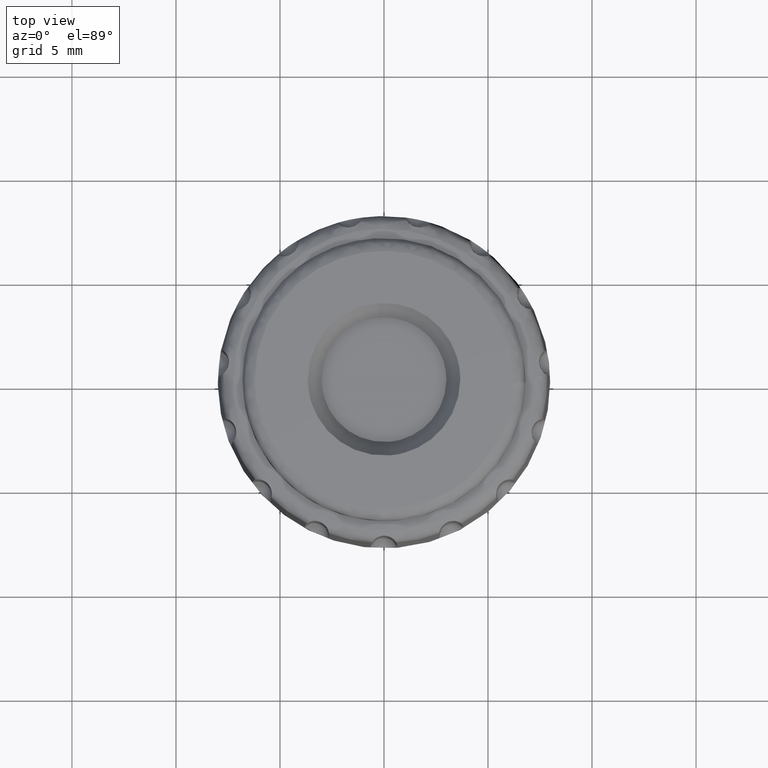
[diagram: clean part render]
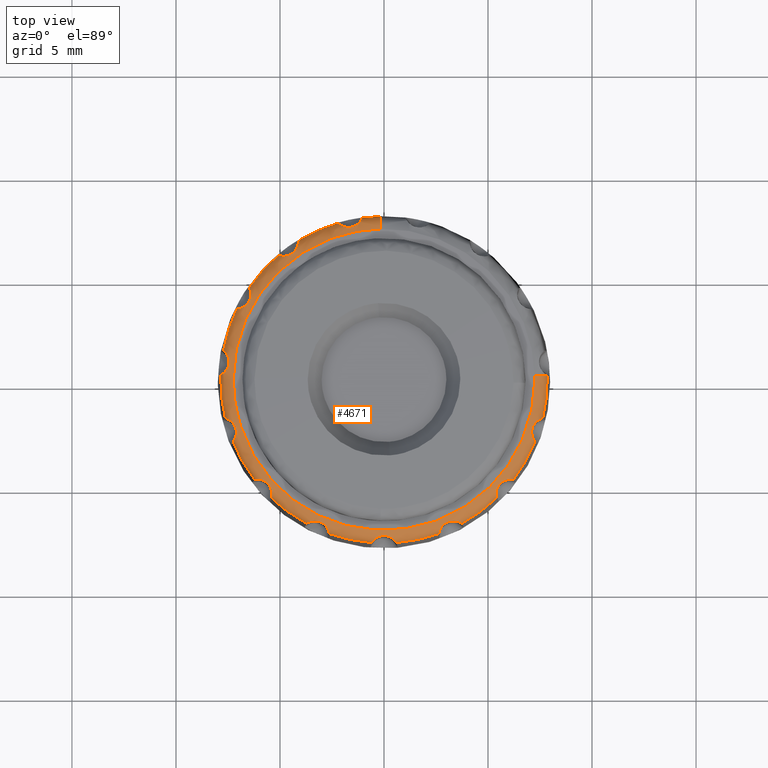
[diagram: same view with one face highlighted and labeled with its STEP entity id]
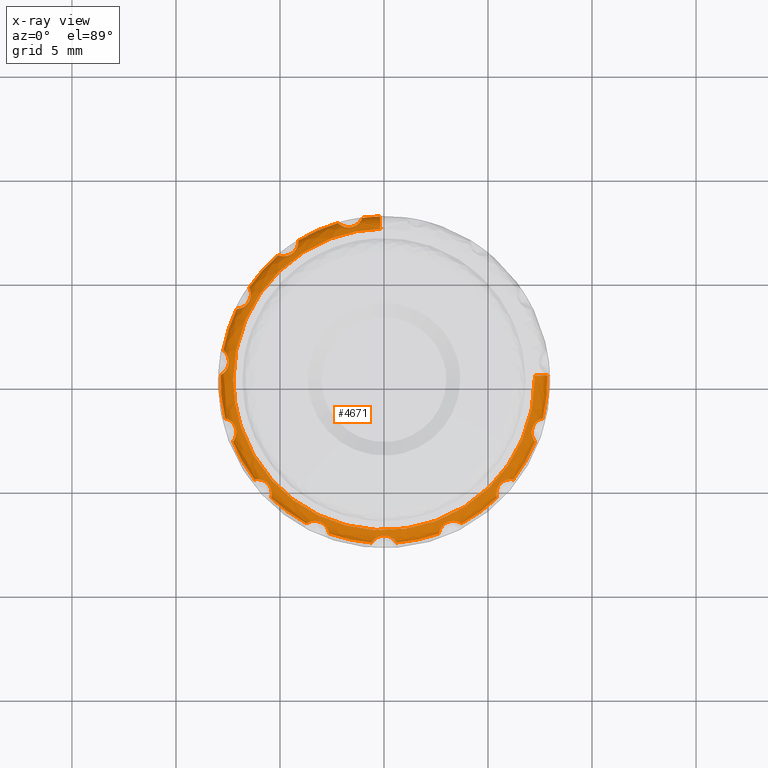
[diagram: x-ray of the same camera — body ghosted, the highlighted face saturated]
A machine part, top view. The second image highlights one B-rep face of the part: STEP entity #4671.
The next image is the same camera in x-ray: the body ghosted, the highlighted face saturated — about 0% of this face is hidden behind the body in this view.
In plain terms, the highlighted face is a freeform B-spline surface patch.
Its self-contained STEP definition (entity closure, byte-faithful):
#1662=CARTESIAN_POINT('',(-4.702175777777210,-6.284620002942106,9.412216218322094));
#1663=VERTEX_POINT('',#1662);
#1669=CARTESIAN_POINT('',(-5.420122522255470,-5.677075191486190,9.412215999999800));
#1670=VERTEX_POINT('',#1669);
#1671=CARTESIAN_POINT('',(-4.702175777777210,-6.284620002942106,9.412216218322094));
#1672=CARTESIAN_POINT('',(-5.079381655399446,-6.002393188347796,9.412215991322931));
#1673=CARTESIAN_POINT('',(-5.420122522255470,-5.677075191486190,9.412215999999800));
#1681=(BOUNDED_CURVE()B_SPLINE_CURVE(2,(#1671,#1672,#1673),.UNSPECIFIED.,.F.,.U.)B_SPLINE_CURVE_WITH_KNOTS((3,3),(0.552308411269987,1.0),.UNSPECIFIED.)CURVE()GEOMETRIC_REPRESENTATION_ITEM()RATIONAL_B_SPLINE_CURVE((0.995571454231174,0.995990876040940,1.0))REPRESENTATION_ITEM(''));
#1682=EDGE_CURVE('',#1663,#1670,#1681,.T.);
#1742=CARTESIAN_POINT('',(-6.212530992362900,-4.797014291706230,9.412215961043639));
#1743=VERTEX_POINT('',#1742);
#1751=CARTESIAN_POINT('',(-7.260602815946840,-2.981703814115975,9.412215999999800));
#1752=VERTEX_POINT('',#1751);
#1753=CARTESIAN_POINT('',(-6.212530992362900,-4.797014291706230,9.412215961043639));
#1754=CARTESIAN_POINT('',(-6.858860470043285,-3.959965284311448,9.412215980521719));
#1755=CARTESIAN_POINT('',(-7.260602815946840,-2.981703814115975,9.412215999999800));
#1763=(BOUNDED_CURVE()B_SPLINE_CURVE(2,(#1753,#1754,#1755),.UNSPECIFIED.,.F.,.U.)CURVE()GEOMETRIC_REPRESENTATION_ITEM()QUASI_UNIFORM_CURVE()RATIONAL_B_SPLINE_CURVE((1.0,0.991044897737674,1.0))REPRESENTATION_ITEM(''));
#1764=EDGE_CURVE('',#1743,#1752,#1763,.T.);
#1824=CARTESIAN_POINT('',(-7.626550958332240,-1.855426615596810,9.412215961043639));
#1825=VERTEX_POINT('',#1824);
#1833=CARTESIAN_POINT('',(-7.845658922255160,0.229231240643653,9.412215999999800));
#1834=VERTEX_POINT('',#1833);
#1835=CARTESIAN_POINT('',(-7.626550958332240,-1.855426615596810,9.412215961043639));
#1836=CARTESIAN_POINT('',(-7.876543813449987,-0.827858414994407,9.412215980521719));
#1837=CARTESIAN_POINT('',(-7.845658922255160,0.229231240643653,9.412215999999800));
#1845=(BOUNDED_CURVE()B_SPLINE_CURVE(2,(#1835,#1836,#1837),.UNSPECIFIED.,.F.,.U.)CURVE()GEOMETRIC_REPRESENTATION_ITEM()QUASI_UNIFORM_CURVE()RATIONAL_B_SPLINE_CURVE((1.0,0.991044897737674,1.0))REPRESENTATION_ITEM(''));
#1846=EDGE_CURVE('',#1825,#1834,#1845,.T.);
#1909=CARTESIAN_POINT('',(-7.721870978565580,1.406981178370932,9.412215961043639));
#1910=VERTEX_POINT('',#1909);
#1918=CARTESIAN_POINT('',(-7.074129325331840,3.400530131395550,9.412215999999800));
#1919=VERTEX_POINT('',#1918);
#1920=CARTESIAN_POINT('',(-7.721870978565580,1.406981178370932,9.412215961043639));
#1921=CARTESIAN_POINT('',(-7.532301175357038,2.447392695132770,9.412215980521719));
#1922=CARTESIAN_POINT('',(-7.074129325331840,3.400530131395550,9.412215999999800));
#1930=(BOUNDED_CURVE()B_SPLINE_CURVE(2,(#1920,#1921,#1922),.UNSPECIFIED.,.F.,.U.)CURVE()GEOMETRIC_REPRESENTATION_ITEM()QUASI_UNIFORM_CURVE()RATIONAL_B_SPLINE_CURVE((1.0,0.991044897737674,1.0))REPRESENTATION_ITEM(''));
#1931=EDGE_CURVE('',#1910,#1919,#1930,.T.);
#1991=CARTESIAN_POINT('',(-6.482009355609390,4.426109144575610,9.412215961043639));
#1992=VERTEX_POINT('',#1991);
#2000=CARTESIAN_POINT('',(-5.079418501611291,5.983846469582750,9.412215999999800));
#2001=VERTEX_POINT('',#2000);
#2002=CARTESIAN_POINT('',(-6.482009355609390,4.426109144575610,9.412215961043639));
#2003=CARTESIAN_POINT('',(-5.885655235236913,5.299467374406853,9.412215980521721));
#2004=CARTESIAN_POINT('',(-5.079418501611291,5.983846469582750,9.412215999999800));
#2012=(BOUNDED_CURVE()B_SPLINE_CURVE(2,(#2002,#2003,#2004),.UNSPECIFIED.,.F.,.U.)CURVE()GEOMETRIC_REPRESENTATION_ITEM()QUASI_UNIFORM_CURVE()RATIONAL_B_SPLINE_CURVE((1.0,0.991044897737674,1.0))REPRESENTATION_ITEM(''));
#2013=EDGE_CURVE('',#1992,#2001,#2012,.T.);
#2073=CARTESIAN_POINT('',(-4.121349427862015,6.679922629743920,9.412215961043639));
#2074=VERTEX_POINT('',#2073);
#2082=CARTESIAN_POINT('',(-2.206430073893710,7.532501391640520,9.412215999999800));
#2083=VERTEX_POINT('',#2082);
#2084=CARTESIAN_POINT('',(-4.121349427862015,6.679922629743920,9.412215961043639));
#2085=CARTESIAN_POINT('',(-3.221326035445109,7.235216000496309,9.412215980521721));
#2086=CARTESIAN_POINT('',(-2.206430073893710,7.532501391640520,9.412215999999800));
#2094=(BOUNDED_CURVE()B_SPLINE_CURVE(2,(#2084,#2085,#2086),.UNSPECIFIED.,.F.,.U.)CURVE()GEOMETRIC_REPRESENTATION_ITEM()QUASI_UNIFORM_CURVE()RATIONAL_B_SPLINE_CURVE((1.0,0.991044897737674,1.0))REPRESENTATION_ITEM(''));
#2095=EDGE_CURVE('',#2074,#2083,#2094,.T.);
#2154=CARTESIAN_POINT('',(-1.048070742753162,7.778716807037540,9.412215961043639));
#2155=VERTEX_POINT('',#2154);
#2163=CARTESIAN_POINT('',(-0.197246265200940,7.846527012240818,9.412215972992714));
#2164=VERTEX_POINT('',#2163);
#2165=CARTESIAN_POINT('',(-1.048070742753162,7.778716807037540,9.412215961043639));
#2166=CARTESIAN_POINT('',(-0.624504697283927,7.835786573062036,9.412215968915490));
#2167=CARTESIAN_POINT('',(-0.197246265200940,7.846527012240818,9.412215972992714));
#2175=(BOUNDED_CURVE()B_SPLINE_CURVE(2,(#2165,#2166,#2167),.UNSPECIFIED.,.F.,.U.)B_SPLINE_CURVE_WITH_KNOTS((3,3),(0.0,0.406306961630669),.UNSPECIFIED.)CURVE()GEOMETRIC_REPRESENTATION_ITEM()RATIONAL_B_SPLINE_CURVE((1.0,0.996361479608702,0.995679671547444))REPRESENTATION_ITEM(''));
#2176=EDGE_CURVE('',#2155,#2164,#2175,.T.);
#2495=CARTESIAN_POINT('',(7.845648282970766,0.229235687101519,9.412650541343664));
#2496=VERTEX_POINT('',#2495);
#2504=CARTESIAN_POINT('',(7.626552596149190,-1.855426200154325,9.412215999999800));
#2505=VERTEX_POINT('',#2504);
#2506=CARTESIAN_POINT('',(7.845648282970766,0.229235687101519,9.412650541343664));
#2507=CARTESIAN_POINT('',(7.876539314203922,-0.827855969894398,9.412433270651064));
#2508=CARTESIAN_POINT('',(7.626552596149190,-1.855426200154325,9.412215999999800));
#2516=(BOUNDED_CURVE()B_SPLINE_CURVE(2,(#2506,#2507,#2508),.UNSPECIFIED.,.F.,.U.)CURVE()GEOMETRIC_REPRESENTATION_ITEM()QUASI_UNIFORM_CURVE()RATIONAL_B_SPLINE_CURVE((1.0,0.991044897737674,1.0))REPRESENTATION_ITEM(''));
#2517=EDGE_CURVE('',#2496,#2505,#2516,.T.);
#2573=CARTESIAN_POINT('',(7.260601735116070,-2.981702515331305,9.412215961043639));
#2574=VERTEX_POINT('',#2573);
#2582=CARTESIAN_POINT('',(6.785519284656205,-3.945077068912923,9.412216523606830));
#2583=VERTEX_POINT('',#2582);
#2584=CARTESIAN_POINT('',(7.260601735116070,-2.981702515331305,9.412215961043639));
#2585=CARTESIAN_POINT('',(7.056097566928545,-3.479681872348699,9.412215970958856));
#2586=CARTESIAN_POINT('',(6.785519284656205,-3.945077068912923,9.412216523606830));
#2594=(BOUNDED_CURVE()B_SPLINE_CURVE(2,(#2584,#2585,#2586),.UNSPECIFIED.,.F.,.U.)B_SPLINE_CURVE_WITH_KNOTS((3,3),(0.0,0.511292772411689),.UNSPECIFIED.)CURVE()GEOMETRIC_REPRESENTATION_ITEM()RATIONAL_B_SPLINE_CURVE((1.0,0.995421320937065,0.995524732898273))REPRESENTATION_ITEM(''));
#2595=EDGE_CURVE('',#2574,#2583,#2594,.T.);
#2701=CARTESIAN_POINT('',(6.212532657558811,-4.797014578340810,9.412215999999800));
#2702=VERTEX_POINT('',#2701);
#2703=CARTESIAN_POINT('',(6.785519284656205,-3.945077068912923,9.412216523606830));
#2704=CARTESIAN_POINT('',(6.526945274507879,-4.389823529020016,9.412215990524496));
#2705=CARTESIAN_POINT('',(6.212532657558811,-4.797014578340810,9.412215999999800));
#2713=(BOUNDED_CURVE()B_SPLINE_CURVE(2,(#2703,#2704,#2705),.UNSPECIFIED.,.F.,.U.)B_SPLINE_CURVE_WITH_KNOTS((3,3),(0.511292772411689,1.0),.UNSPECIFIED.)CURVE()GEOMETRIC_REPRESENTATION_ITEM()RATIONAL_B_SPLINE_CURVE((0.995524732898273,0.995623576800609,1.0))REPRESENTATION_ITEM(''));
#2714=EDGE_CURVE('',#2583,#2702,#2713,.T.);
#2774=CARTESIAN_POINT('',(5.420122063130750,-5.677073565373870,9.412215961043639));
#2775=VERTEX_POINT('',#2774);
#2783=CARTESIAN_POINT('',(3.724309383389155,-6.909155556422830,9.412215999999800));
#2784=VERTEX_POINT('',#2783);
#2785=CARTESIAN_POINT('',(5.420122063130750,-5.677073565373870,9.412215961043639));
#2786=CARTESIAN_POINT('',(4.655218324846875,-6.407357828971640,9.412215980521719));
#2787=CARTESIAN_POINT('',(3.724309383389155,-6.909155556422830,9.412215999999800));
#2795=(BOUNDED_CURVE()B_SPLINE_CURVE(2,(#2785,#2786,#2787),.UNSPECIFIED.,.F.,.U.)CURVE()GEOMETRIC_REPRESENTATION_ITEM()QUASI_UNIFORM_CURVE()RATIONAL_B_SPLINE_CURVE((1.0,0.991044897737674,1.0))REPRESENTATION_ITEM(''));
#2796=EDGE_CURVE('',#2775,#2784,#2795,.T.);
#2854=CARTESIAN_POINT('',(2.642454046167005,-7.390827021369060,9.412215961043639));
#2855=VERTEX_POINT('',#2854);
#2863=CARTESIAN_POINT('',(0.592118281320396,-7.826639341813929,9.412215961043639));
#2864=VERTEX_POINT('',#2863);
#2865=CARTESIAN_POINT('',(2.642454046167005,-7.390827021369060,9.412215961043639));
#2866=CARTESIAN_POINT('',(1.646645905241851,-7.746859905450203,9.412215961043639));
#2867=CARTESIAN_POINT('',(0.592118281320396,-7.826639341813929,9.412215961043639));
#2875=(BOUNDED_CURVE()B_SPLINE_CURVE(2,(#2865,#2866,#2867),.UNSPECIFIED.,.F.,.U.)CURVE()GEOMETRIC_REPRESENTATION_ITEM()QUASI_UNIFORM_CURVE()RATIONAL_B_SPLINE_CURVE((1.0,0.991044891010770,1.0))REPRESENTATION_ITEM(''));
#2876=EDGE_CURVE('',#2855,#2864,#2875,.T.);
#2935=CARTESIAN_POINT('',(-0.592119182542938,-7.826640771091620,9.412215999999800));
#2936=VERTEX_POINT('',#2935);
#2944=CARTESIAN_POINT('',(-2.642453804198850,-7.390828693639440,9.412215999999800));
#2945=VERTEX_POINT('',#2944);
#2946=CARTESIAN_POINT('',(-0.592119182542935,-7.826640771091624,9.412215999999800));
#2947=CARTESIAN_POINT('',(-1.646646190559932,-7.746861247766270,9.412215999999800));
#2948=CARTESIAN_POINT('',(-2.642453804198846,-7.390828693639438,9.412215999999800));
#2956=(BOUNDED_CURVE()B_SPLINE_CURVE(2,(#2946,#2947,#2948),.UNSPECIFIED.,.F.,.U.)CURVE()GEOMETRIC_REPRESENTATION_ITEM()QUASI_UNIFORM_CURVE()RATIONAL_B_SPLINE_CURVE((1.0,0.991044904464576,1.0))REPRESENTATION_ITEM(''));
#2957=EDGE_CURVE('',#2936,#2945,#2956,.T.);
#3017=CARTESIAN_POINT('',(-3.724307978741780,-6.909154617272930,9.412215961043639));
#3018=VERTEX_POINT('',#3017);
#3026=CARTESIAN_POINT('',(-3.724307978741780,-6.909154617272930,9.412215961043639));
#3027=CARTESIAN_POINT('',(-4.236385791338151,-6.633124861778008,9.412215971758203));
#3028=CARTESIAN_POINT('',(-4.702175777777210,-6.284620002942106,9.412216218322094));
#3036=(BOUNDED_CURVE()B_SPLINE_CURVE(2,(#3026,#3027,#3028),.UNSPECIFIED.,.F.,.U.)B_SPLINE_CURVE_WITH_KNOTS((3,3),(0.0,0.552308411269987),.UNSPECIFIED.)CURVE()GEOMETRIC_REPRESENTATION_ITEM()RATIONAL_B_SPLINE_CURVE((1.0,0.995054021696735,0.995571454231174))REPRESENTATION_ITEM(''));
#3037=EDGE_CURVE('',#3018,#1663,#3036,.T.);
#3774=CARTESIAN_POINT('',(-0.182171356558874,7.246841755596723,9.999993999997795));
#3775=VERTEX_POINT('',#3774);
#3776=CARTESIAN_POINT('',(7.246840678469663,0.182171329570759,9.999993999999788));
#3777=VERTEX_POINT('',#3776);
#3793=CARTESIAN_POINT('',(7.246840678469663,0.182171329570759,9.999993999999788));
#3794=CARTESIAN_POINT('',(7.574386027122025,0.183811404593513,9.999993992587504));
#3795=CARTESIAN_POINT('',(7.839512381016816,0.201442838262934,9.739133478663865));
#3796=CARTESIAN_POINT('',(7.845648282970766,0.229235687101519,9.412650541343664));
#3797=B_SPLINE_CURVE_WITH_KNOTS('',3,(#3793,#3794,#3795,#3796),.UNSPECIFIED.,.F.,.U.,(4,4),(0.0,0.982648364079897),.UNSPECIFIED.);
#3798=EDGE_CURVE('',#3777,#2496,#3797,.T.);
#4005=CARTESIAN_POINT('',(-0.182171356558874,7.246841755596723,9.999993999997795));
#4006=CARTESIAN_POINT('',(-0.196945312790723,7.834555017678387,9.999992913477826));
#4007=CARTESIAN_POINT('',(-0.197246265200940,7.846527012240818,9.412215972992714));
#4015=(BOUNDED_CURVE()B_SPLINE_CURVE(2,(#4005,#4006,#4007),.UNSPECIFIED.,.F.,.U.)B_SPLINE_CURVE_WITH_KNOTS((3,3),(-1.733065934585498,-0.275062020216260),.UNSPECIFIED.)CURVE()GEOMETRIC_REPRESENTATION_ITEM()RATIONAL_B_SPLINE_CURVE((0.889550495395879,0.634370624115461,0.886721158548767))REPRESENTATION_ITEM(''));
#4016=EDGE_CURVE('',#3775,#2164,#4015,.T.);
#4021=CARTESIAN_POINT('',(7.201472139919910,0.345766949338365,9.998574833704968));
#4022=CARTESIAN_POINT('',(7.203531564967535,0.263842283999675,9.998574833704968));
#4023=CARTESIAN_POINT('',(7.386745554433626,-7.024475778211517,9.998574833704970));
#4024=CARTESIAN_POINT('',(0.181134888111053,-7.205610666322577,9.998574833704971));
#4025=CARTESIAN_POINT('',(-7.024475778211517,-7.386745554433626,9.998574833704970));
#4026=CARTESIAN_POINT('',(-7.205610666322577,-0.181134888111053,9.998574833704971));
#4027=CARTESIAN_POINT('',(-7.386745554433626,7.024475778211517,9.998574833704970));
#4028=CARTESIAN_POINT('',(-0.105009231718278,7.207524315684390,9.998574833704971));
#4029=CARTESIAN_POINT('',(-0.029546935294763,7.209421289480541,9.998574833704968));
#4030=CARTESIAN_POINT('',(7.874227936915116,0.378068222613765,10.044969882360327));
#4031=CARTESIAN_POINT('',(7.876479751811973,0.288490220227782,10.044969882360325));
#4032=CARTESIAN_POINT('',(8.076809446387951,-7.680696715934505,10.044969882360324));
#4033=CARTESIAN_POINT('',(0.198056365226723,-7.878753081161228,10.044969882360324));
#4034=CARTESIAN_POINT('',(-7.680696715934505,-8.076809446387951,10.044969882360324));
#4035=CARTESIAN_POINT('',(-7.878753081161228,-0.198056365226723,10.044969882360324));
#4036=CARTESIAN_POINT('',(-8.076809446387951,7.680696715934505,10.044969882360324));
#4037=CARTESIAN_POINT('',(-0.114819110588026,7.880845502123704,10.044969882360324));
#4038=CARTESIAN_POINT('',(-0.032307186479073,7.882919689702443,10.044969882360327));
#4039=CARTESIAN_POINT('',(7.841435245629993,0.376493734980410,9.370816880194127));
#4040=CARTESIAN_POINT('',(7.843677682709584,0.287288785521231,9.370816880194123));
#4041=CARTESIAN_POINT('',(8.043173092339520,-7.648709996947179,9.370816880194123));
#4042=CARTESIAN_POINT('',(0.197231547696170,-7.845941544643353,9.370816880194125));
#4043=CARTESIAN_POINT('',(-7.648709996947179,-8.043173092339520,9.370816880194123));
#4044=CARTESIAN_POINT('',(-7.845941544643353,-0.197231547696171,9.370816880194125));
#4045=CARTESIAN_POINT('',(-8.043173092339520,7.648709996947179,9.370816880194123));
#4046=CARTESIAN_POINT('',(-0.114340939562586,7.848025251594090,9.370816880194125));
#4047=CARTESIAN_POINT('',(-0.032172641276548,7.850090801095102,9.370816880194123));
#4055=(BOUNDED_SURFACE()B_SPLINE_SURFACE(2,2,((#4021,#4030,#4039),(#4022,#4031,#4040),(#4023,#4032,#4041),(#4024,#4033,#4042),(#4025,#4034,#4043),(#4026,#4035,#4044),(#4027,#4036,#4045),(#4028,#4037,#4046),(#4029,#4038,#4047)),.UNSPECIFIED.,.F.,.F.,.U.)B_SPLINE_SURFACE_WITH_KNOTS((3,1,2,2,1,3),(3,3),(0.0,0.212092273168485,13.215780566799390,26.219468860430290,39.223157154061191,39.418297235177853),(0.0,1.077849868088511),.UNSPECIFIED.)GEOMETRIC_REPRESENTATION_ITEM()RATIONAL_B_SPLINE_SURFACE(((0.925064851687839,0.613559409468956,0.921922123744445),(0.920687513287169,0.610656091761812,0.917559656499764),(0.647929138332475,0.429746107818992,0.645727925082764),(0.916310174886498,0.607752774054669,0.913197189255082),(0.647929138332475,0.429746107818992,0.645727925082764),(0.916310174886498,0.607752774054669,0.913197189255082),(0.647929138332475,0.429746107818992,0.645727925082764),(0.920337639714994,0.610424034277475,0.917210971555014),(0.924365104543490,0.613095294500280,0.921224753854945)))REPRESENTATION_ITEM('')SURFACE());
#4056=CARTESIAN_POINT('',(-7.249130031415930,0.0,9.999993999999790));
#4057=VERTEX_POINT('',#4056);
#4058=CARTESIAN_POINT('',(-7.249130031415930,0.0,9.999993999999790));
#4059=CARTESIAN_POINT('',(-7.249130044954386,7.069191766844705,9.999993999998791));
#4060=CARTESIAN_POINT('',(-0.182171356558874,7.246841755596723,9.999993999997795));
#4068=(BOUNDED_CURVE()B_SPLINE_CURVE(2,(#4058,#4059,#4060),.UNSPECIFIED.,.F.,.U.)B_SPLINE_CURVE_WITH_KNOTS((3,3),(0.0,0.245579891771949),.UNSPECIFIED.)CURVE()GEOMETRIC_REPRESENTATION_ITEM()RATIONAL_B_SPLINE_CURVE((1.0,0.712285260092218,0.989826157686416))REPRESENTATION_ITEM(''));
#4069=EDGE_CURVE('',#4057,#3775,#4068,.T.);
#4070=ORIENTED_EDGE('',*,*,#4069,.T.);
#4071=ORIENTED_EDGE('',*,*,#4016,.T.);
#4072=ORIENTED_EDGE('',*,*,#2176,.F.);
#4073=CARTESIAN_POINT('',(-2.206430073893710,7.532501391640520,9.412215999999800));
#4074=CARTESIAN_POINT('',(-2.205759403691255,7.531812527671064,9.453916721253474));
#4075=CARTESIAN_POINT('',(-2.201756861701452,7.527634322362431,9.494704833202192));
#4076=CARTESIAN_POINT('',(-2.190454197498181,7.516584462021651,9.554537304504338));
#4077=CARTESIAN_POINT('',(-2.185751809338616,7.512067098771748,9.574370130042949));
#4078=CARTESIAN_POINT('',(-2.174467002384994,7.501632577957841,9.612978597844531));
#4079=CARTESIAN_POINT('',(-2.167930515414736,7.495757746582197,9.631641589601186));
#4080=CARTESIAN_POINT('',(-2.152937080383540,7.482906059847617,9.667704716385682));
#4081=CARTESIAN_POINT('',(-2.144480165183508,7.475928362059978,9.685104555301905));
#4082=CARTESIAN_POINT('',(-2.125418426048824,7.461085136414820,9.718618972083320));
#4083=CARTESIAN_POINT('',(-2.114718584567841,7.453156672674249,9.734840476893183));
#4084=CARTESIAN_POINT('',(-2.079889054335036,7.429063113567037,9.780307952086476));
#4085=CARTESIAN_POINT('',(-2.052988123053166,7.412513445994849,9.806634205302334));
#4086=CARTESIAN_POINT('',(-2.006576139062911,7.388923671745362,9.840784181276847));
#4087=CARTESIAN_POINT('',(-1.990109724275899,7.381292160698603,9.851233063807088));
#4088=CARTESIAN_POINT('',(-1.956087119518412,7.367178321332100,9.869956063568877));
#4089=CARTESIAN_POINT('',(-1.938421190516012,7.360636827082149,9.878316308489113));
#4090=CARTESIAN_POINT('',(-1.883530778522369,7.342898700923734,9.900804938109522));
#4091=CARTESIAN_POINT('',(-1.844161602492220,7.333620592955301,9.912352961847645));
#4092=CARTESIAN_POINT('',(-1.784263146983466,7.325032016340133,9.925297023523566));
#4093=CARTESIAN_POINT('',(-1.764054451144431,7.323014002249193,9.928922032146851));
#4094=CARTESIAN_POINT('',(-1.723186296711047,7.320748476139698,9.935010304568072));
#4095=CARTESIAN_POINT('',(-1.702422387562693,7.320508355908517,9.937480643029645));
#4096=CARTESIAN_POINT('',(-1.640550317902158,7.322549198380063,9.943259063981902));
#4097=CARTESIAN_POINT('',(-1.599716026217077,7.327520245649390,9.945032285502833));
#4098=CARTESIAN_POINT('',(-1.539104858381029,7.340406159855156,9.945030959725870));
#4099=CARTESIAN_POINT('',(-1.518902714812790,7.345646141391257,9.944568639866327));
#4100=CARTESIAN_POINT('',(-1.479287301923180,7.357830302386626,9.942689594053825));
#4101=CARTESIAN_POINT('',(-1.459913040267115,7.364750032666372,9.941280670589181));
#4102=CARTESIAN_POINT('',(-1.403061087888804,7.387891967682656,9.935527252520361));
#4103=CARTESIAN_POINT('',(-1.366842610948478,7.406486588465889,9.929709340950955));
#4104=CARTESIAN_POINT('',(-1.297916876118814,7.449807278104683,9.912306373263597));
#4105=CARTESIAN_POINT('',(-1.266328324079844,7.473875072612068,9.900942589624775));
#4106=CARTESIAN_POINT('',(-1.223648628069033,7.512098023748442,9.878686167111143));
#4107=CARTESIAN_POINT('',(-1.210174689101419,7.525214578644047,9.870383158481378));
#4108=CARTESIAN_POINT('',(-1.184722489269515,7.551998209969423,9.851677396572239));
#4109=CARTESIAN_POINT('',(-1.172719095955559,7.565715427900720,9.841215007211421));
#4110=CARTESIAN_POINT('',(-1.139977708080985,7.605973347210681,9.807305138358251));
#4111=CARTESIAN_POINT('',(-1.122063831774310,7.632045344146722,9.781088387611735));
#4112=CARTESIAN_POINT('',(-1.099896909975534,7.668383790458045,9.735578581192415));
#4113=CARTESIAN_POINT('',(-1.093328224737965,7.679989189708618,9.719397350403462));
#4114=CARTESIAN_POINT('',(-1.081895144145088,7.701366270723706,9.685906184650193));
#4115=CARTESIAN_POINT('',(-1.076971526669963,7.711233832210128,9.668483377353562));
#4116=CARTESIAN_POINT('',(-1.064157344725433,7.738183430109067,9.614196895074393));
#4117=CARTESIAN_POINT('',(-1.058207217899534,7.752605207944947,9.575021713290326));
#4118=CARTESIAN_POINT('',(-1.050395894222357,7.772274195265117,9.495266307989159));
#4119=CARTESIAN_POINT('',(-1.048403668376835,7.777813564208459,9.453969800864000));
#4120=CARTESIAN_POINT('',(-1.048070742753162,7.778716807037540,9.412215961043639));
#4121=B_SPLINE_CURVE_WITH_KNOTS('',3,(#4073,#4074,#4075,#4076,#4077,#4078,#4079,#4080,#4081,#4082,#4083,#4084,#4085,#4086,#4087,#4088,#4089,#4090,#4091,#4092,#4093,#4094,#4095,#4096,#4097,#4098,#4099,#4100,#4101,#4102,#4103,#4104,#4105,#4106,#4107,#4108,#4109,#4110,#4111,#4112,#4113,#4114,#4115,#4116,#4117,#4118,#4119,#4120),.UNSPECIFIED.,.F.,.U.,(4,2,2,2,2,2,2,2,2,2,2,2,2,2,2,2,2,2,2,2,2,2,2,4),(0.000000139648876,0.062499999999993,0.093749999999991,0.124999999999989,0.156249999999987,0.187499999999985,0.249999999999984,0.281249999999984,0.312499999999983,0.374999999999984,0.406249999999984,0.437499999999985,0.499999999999987,0.531249999999987,0.562499999999988,0.624999999999990,0.687499999999992,0.718749999999992,0.749999999999992,0.812499999999992,0.843749999999993,0.874999999999995,0.937499999999997,1.0),.UNSPECIFIED.);
#4122=EDGE_CURVE('',#2083,#2155,#4121,.T.);
#4123=ORIENTED_EDGE('',*,*,#4122,.F.);
#4124=ORIENTED_EDGE('',*,*,#2095,.F.);
#4125=CARTESIAN_POINT('',(-5.079418501611291,5.983846469582750,9.412215999999800));
#4126=CARTESIAN_POINT('',(-5.078525627675790,5.983489947179279,9.453916721253474));
#4127=CARTESIAN_POINT('',(-5.073169694420664,5.981300947191178,9.494704833202190));
#4128=CARTESIAN_POINT('',(-5.058349813777044,5.975803605165125,9.554537304504336));
#4129=CARTESIAN_POINT('',(-5.052216591269982,5.973589422062116,9.574370130042949));
#4130=CARTESIAN_POINT('',(-5.037663305169172,5.968646957467969,9.612978597844533));
#4131=CARTESIAN_POINT('',(-5.020941843449897,5.963231146930935,9.650304877469464));
#4132=CARTESIAN_POINT('',(-4.999814119767494,5.957361733292005,9.685104555301905));
#4133=CARTESIAN_POINT('',(-4.976363070794908,5.951554879713932,9.718618972083318));
#4134=CARTESIAN_POINT('',(-4.963363482485871,5.948663885283072,9.734840476893181));
#4135=CARTESIAN_POINT('',(-4.921745389998852,5.940819770009030,9.780307952086476));
#4136=CARTESIAN_POINT('',(-4.890438810187614,5.936642490858165,9.806634205302343));
#4137=CARTESIAN_POINT('',(-4.838444527443981,5.933969614312414,9.840784181276852));
#4138=CARTESIAN_POINT('',(-4.820297693826895,5.933695376334664,9.851233063807094));
#4139=CARTESIAN_POINT('',(-4.783475882148678,5.934639982539251,9.869956063568878));
#4140=CARTESIAN_POINT('',(-4.764676587541573,5.935849410840264,9.878316308489117));
#4141=CARTESIAN_POINT('',(-4.707316955108520,5.941970768172491,9.900804938109523));
#4142=CARTESIAN_POINT('',(-4.667577676685870,5.949507681281576,9.912352961847645));
#4143=CARTESIAN_POINT('',(-4.609364425914789,5.966024522846230,9.925297023523577));
#4144=CARTESIAN_POINT('',(-4.590082063349128,5.972400592346501,9.928922032146858));
#4145=CARTESIAN_POINT('',(-4.551825674019696,5.986953507202942,9.935010304568081));
#4146=CARTESIAN_POINT('',(-4.532759233437552,5.995179589160589,9.937480643029648));
#4147=CARTESIAN_POINT('',(-4.477066370660147,6.022209629444111,9.943259063981913));
#4148=CARTESIAN_POINT('',(-4.441784296054082,6.043359709819099,9.945032285502835));
#4149=CARTESIAN_POINT('',(-4.391654412482062,6.079784361147886,9.945030959725870));
#4150=CARTESIAN_POINT('',(-4.375330128490426,6.092788274536204,9.944568639866331));
#4151=CARTESIAN_POINT('',(-4.344095392734436,6.120032099521488,9.942689594053826));
#4152=CARTESIAN_POINT('',(-4.329210631868337,6.134233809834727,9.941280670589185));
#4153=CARTESIAN_POINT('',(-4.286686461977816,6.178498791712568,9.935527252520361));
#4154=CARTESIAN_POINT('',(-4.261162350522886,6.210217204793706,9.929709340950957));
#4155=CARTESIAN_POINT('',(-4.215815670433980,6.277827246041323,9.912306373263602));
#4156=CARTESIAN_POINT('',(-4.196747346149444,6.312662492004976,9.900942589624775));
#4157=CARTESIAN_POINT('',(-4.173304178558861,6.364940291676239,9.878686167111145));
#4158=CARTESIAN_POINT('',(-4.166330106325402,6.382403205525736,9.870383158481383));
#4159=CARTESIAN_POINT('',(-4.153972249076615,6.417223612580726,9.851677396572235));
#4160=CARTESIAN_POINT('',(-4.148585898812071,6.434637134615395,9.841215007211426));
#4161=CARTESIAN_POINT('',(-4.135049523599688,6.484731696128900,9.807305138358252));
#4162=CARTESIAN_POINT('',(-4.129288819783000,6.515835880414945,9.781088387611739));
#4163=CARTESIAN_POINT('',(-4.123818506731069,6.558048802340203,9.735578581192423));
#4164=CARTESIAN_POINT('',(-4.122538055302332,6.571322587092644,9.719397350403460));
#4165=CARTESIAN_POINT('',(-4.120788258630687,6.595501775171996,9.685906184650191));
#4166=CARTESIAN_POINT('',(-4.120303809085448,6.606518856789547,9.668483377353562));
#4167=CARTESIAN_POINT('',(-4.119558860358274,6.636350536883299,9.614196895074397));
#4168=CARTESIAN_POINT('',(-4.119989014528228,6.651945621127442,9.575021713290326));
#4169=CARTESIAN_POINT('',(-4.120853113140072,6.673091286720643,9.495266307989159));
#4170=CARTESIAN_POINT('',(-4.121286188597069,6.678962063309695,9.453969800863993));
#4171=CARTESIAN_POINT('',(-4.121349427862015,6.679922629743920,9.412215961043639));
#4172=B_SPLINE_CURVE_WITH_KNOTS('',3,(#4125,#4126,#4127,#4128,#4129,#4130,#4131,#4132,#4133,#4134,#4135,#4136,#4137,#4138,#4139,#4140,#4141,#4142,#4143,#4144,#4145,#4146,#4147,#4148,#4149,#4150,#4151,#4152,#4153,#4154,#4155,#4156,#4157,#4158,#4159,#4160,#4161,#4162,#4163,#4164,#4165,#4166,#4167,#4168,#4169,#4170,#4171),.UNSPECIFIED.,.F.,.U.,(4,2,2,1,2,2,2,2,2,2,2,2,2,2,2,2,2,2,2,2,2,2,2,4),(0.000000139648877,0.062500000000000,0.093749999999999,0.124999999999999,0.156249999999999,0.187499999999999,0.249999999999998,0.281249999999998,0.312499999999997,0.374999999999995,0.406249999999995,0.437499999999994,0.499999999999994,0.531249999999995,0.562499999999995,0.624999999999995,0.687499999999995,0.718749999999995,0.749999999999996,0.812499999999994,0.843749999999994,0.874999999999995,0.937499999999997,1.0),.UNSPECIFIED.);
#4173=EDGE_CURVE('',#2001,#2074,#4172,.T.);
#4174=ORIENTED_EDGE('',*,*,#4173,.F.);
#4175=ORIENTED_EDGE('',*,*,#2013,.F.);
#4176=CARTESIAN_POINT('',(-7.074129325331840,3.400530131395550,9.412215999999800));
#4177=CARTESIAN_POINT('',(-7.073168633678244,3.400567596520526,9.453916721253480));
#4178=CARTESIAN_POINT('',(-7.067385398674737,3.400746299837345,9.494704833202194));
#4179=CARTESIAN_POINT('',(-7.051610793588432,3.401752016504106,9.554537304504329));
#4180=CARTESIAN_POINT('',(-7.045107226623922,3.402223865921723,9.574370130042947));
#4181=CARTESIAN_POINT('',(-7.029801856755212,3.403628054576546,9.612978597844537));
#4182=CARTESIAN_POINT('',(-7.012323232759053,3.405481696668001,9.650304877469461));
#4183=CARTESIAN_POINT('',(-6.990634791158345,3.408713139905546,9.685104555301903));
#4184=CARTESIAN_POINT('',(-6.966849331761305,3.412946716131821,9.718618972083313));
#4185=CARTESIAN_POINT('',(-6.953797743540404,3.415593070211621,9.734840476893178));
#4186=CARTESIAN_POINT('',(-6.912587235078680,3.425354717563188,9.780307952086478));
#4187=CARTESIAN_POINT('',(-6.882288198798778,3.434272116348216,9.806634205302334));
#4188=CARTESIAN_POINT('',(-6.833701901141376,3.452978302143285,9.840784181276845));
#4189=CARTESIAN_POINT('',(-6.817012401085418,3.460108755472267,9.851233063807086));
#4190=CARTESIAN_POINT('',(-6.783758208241294,3.475948476253695,9.869956063568871));
#4191=CARTESIAN_POINT('',(-6.767076116853285,3.484699705965117,9.878316308489110));
#4192=CARTESIAN_POINT('',(-6.717165265524400,3.513622108494466,9.900804938109518));
#4193=CARTESIAN_POINT('',(-6.683927166968535,3.536670841933800,9.912352961847644));
#4194=CARTESIAN_POINT('',(-6.637464720844225,3.575437189720951,9.925297023523562));
#4195=CARTESIAN_POINT('',(-6.622442787214308,3.589104862471064,9.928922032146849));
#4196=CARTESIAN_POINT('',(-6.593413040252277,3.617959887105679,9.935010304568076));
#4197=CARTESIAN_POINT('',(-6.579340829026165,3.633229806950070,9.937480643029641));
#4198=CARTESIAN_POINT('',(-6.539456975059877,3.680575305520342,9.943259063981904));
#4199=CARTESIAN_POINT('',(-6.515827708759812,3.714247377961709,9.945032285502833));
#4200=CARTESIAN_POINT('',(-6.484847021737112,3.767912613291200,9.945030959725868));
#4201=CARTESIAN_POINT('',(-6.475223214325700,3.786431963770049,9.944568639866326));
#4202=CARTESIAN_POINT('',(-6.457769925274210,3.824024747902918,9.942689594053823));
#4203=CARTESIAN_POINT('',(-6.449948375575628,3.843052833517995,9.941280670589181));
#4204=CARTESIAN_POINT('',(-6.429104803466927,3.900787044755988,9.935527252520359));
#4205=CARTESIAN_POINT('',(-6.418688408247228,3.940144848360562,9.929709340950952));
#4206=CARTESIAN_POINT('',(-6.404761635848104,4.020353850867344,9.912306373263599));
#4207=CARTESIAN_POINT('',(-6.401510625817089,4.059933217791874,9.900942589624773));
#4208=CARTESIAN_POINT('',(-6.401357523297635,4.117226559505966,9.878686167111139));
#4209=CARTESIAN_POINT('',(-6.402089198244953,4.136016335859182,9.870383158481378));
#4210=CARTESIAN_POINT('',(-6.404962469365207,4.172852753930517,9.851677396572230));
#4211=CARTESIAN_POINT('',(-6.407124511044264,4.190951623911876,9.841215007211424));
#4212=CARTESIAN_POINT('',(-6.415133710742405,4.242221022848434,9.807305138358245));
#4213=CARTESIAN_POINT('',(-6.422522257439965,4.272979198448782,9.781088387611733));
#4214=CARTESIAN_POINT('',(-6.434694419957789,4.313767598294741,9.735578581192417));
#4215=CARTESIAN_POINT('',(-6.438923604022456,4.326414610576801,9.719397350403462));
#4216=CARTESIAN_POINT('',(-6.447159647012968,4.349215104440471,9.685906184650193));
#4217=CARTESIAN_POINT('',(-6.451198131125074,4.359476752690435,9.668483377353564));
#4218=CARTESIAN_POINT('',(-6.462651224017830,4.387032346478486,9.614196895074395));
#4219=CARTESIAN_POINT('',(-6.469387281619820,4.401104205388178,9.575021713290324));
#4220=CARTESIAN_POINT('',(-6.478777392020612,4.420070271571011,9.495266307989160));
#4221=CARTESIAN_POINT('',(-6.481560886099248,4.425257345199197,9.453969800863996));
#4222=CARTESIAN_POINT('',(-6.482009355609390,4.426109144575610,9.412215961043639));
#4223=B_SPLINE_CURVE_WITH_KNOTS('',3,(#4176,#4177,#4178,#4179,#4180,#4181,#4182,#4183,#4184,#4185,#4186,#4187,#4188,#4189,#4190,#4191,#4192,#4193,#4194,#4195,#4196,#4197,#4198,#4199,#4200,#4201,#4202,#4203,#4204,#4205,#4206,#4207,#4208,#4209,#4210,#4211,#4212,#4213,#4214,#4215,#4216,#4217,#4218,#4219,#4220,#4221,#4222),.UNSPECIFIED.,.F.,.U.,(4,2,2,1,2,2,2,2,2,2,2,2,2,2,2,2,2,2,2,2,2,2,2,4),(0.000000139648876,0.062500000000005,0.093750000000005,0.125000000000006,0.156250000000007,0.187500000000008,0.250000000000008,0.281250000000007,0.312500000000007,0.375000000000007,0.406250000000006,0.437500000000006,0.500000000000004,0.531250000000003,0.562500000000003,0.625000000000000,0.687499999999999,0.718749999999999,0.749999999999998,0.812499999999998,0.843749999999998,0.874999999999999,0.937500000000000,1.0),.UNSPECIFIED.);
#4224=EDGE_CURVE('',#1919,#1992,#4223,.T.);
#4225=ORIENTED_EDGE('',*,*,#4224,.F.);
#4226=ORIENTED_EDGE('',*,*,#1931,.F.);
#4227=CARTESIAN_POINT('',(-7.845658922255160,0.229231240643653,9.412215999999800));
#4228=CARTESIAN_POINT('',(-7.844796525197992,0.229656215236607,9.453916721253478));
#4229=CARTESIAN_POINT('',(-7.839585962317250,0.232171722431400,9.494704833202194));
#4230=CARTESIAN_POINT('',(-7.825584205315471,0.239506600242645,9.554537304504340));
#4231=CARTESIAN_POINT('',(-7.819834819704726,0.242582895129963,9.574370130042947));
#4232=CARTESIAN_POINT('',(-7.806423803563334,0.250090940058683,9.612978597844537));
#4233=CARTESIAN_POINT('',(-7.791210230167543,0.258893523221209,9.650304877469464));
#4234=CARTESIAN_POINT('',(-7.772711199234596,0.270667077442716,9.685104555301901));
#4235=CARTESIAN_POINT('',(-7.752704051426973,0.284209059682979,9.718618972083318));
#4236=CARTESIAN_POINT('',(-7.741857201467549,0.291935183611672,9.734840476893186));
#4237=CARTESIAN_POINT('',(-7.708179948329858,0.317614716079974,9.780307952086476));
#4238=CARTESIAN_POINT('',(-7.684127434212202,0.338084893538942,9.806634205302339));
#4239=CARTESIAN_POINT('',(-7.647350133898646,0.374935672210499,9.840784181276852));
#4240=CARTESIAN_POINT('',(-7.635003733582837,0.388237896687497,9.851233063807090));
#4241=CARTESIAN_POINT('',(-7.611067111620412,0.416233900423313,9.869956063568875));
#4242=CARTESIAN_POINT('',(-7.599386708604531,0.431013764425611,9.878316308489115));
#4243=CARTESIAN_POINT('',(-7.565554678000424,0.477736266002973,9.900804938109523));
#4244=CARTESIAN_POINT('',(-7.544564928510301,0.512311484369728,9.912352961847651));
#4245=CARTESIAN_POINT('',(-7.517887066065728,0.566624284665765,9.925297023523577));
#4246=CARTESIAN_POINT('',(-7.509722990166147,0.585220295880316,9.928922032146858));
#4247=CARTESIAN_POINT('',(-7.494939392548222,0.623388134394109,9.935010304568081));
#4248=CARTESIAN_POINT('',(-7.488294623841164,0.643061584261284,9.937480643029650));
#4249=CARTESIAN_POINT('',(-7.471116059370200,0.702536074295153,9.943259063981911));
#4250=CARTESIAN_POINT('',(-7.463225316184552,0.742907931576609,9.945032285502837));
#4251=CARTESIAN_POINT('',(-7.456750667948109,0.804534544184980,9.945030959725873));
#4252=CARTESIAN_POINT('',(-7.455491380847898,0.825367167813552,9.944568639866331));
#4253=CARTESIAN_POINT('',(-7.454837370736064,0.866808777197708,9.942689594053826));
#4254=CARTESIAN_POINT('',(-7.455431449204430,0.887373109247048,9.941280670589185));
#4255=CARTESIAN_POINT('',(-7.459872517853049,0.948593780223295,9.935527252520359));
#4256=CARTESIAN_POINT('',(-7.466364928232044,0.988785652553656,9.929709340950954));
#4257=CARTESIAN_POINT('',(-7.486266128991270,1.067724751110270,9.912306373263597));
#4258=CARTESIAN_POINT('',(-7.499394562382635,1.105204606887166,9.900942589624775));
#4259=CARTESIAN_POINT('',(-7.522557997750817,1.157606951368047,9.878686167111148));
#4260=CARTESIAN_POINT('',(-7.530868906633462,1.174474667193754,9.870383158481383));
#4261=CARTESIAN_POINT('',(-7.548476491443220,1.206957744948547,9.851677396572235));
#4262=CARTESIAN_POINT('',(-7.557813088418043,1.222612503833753,9.841215007211428));
#4263=CARTESIAN_POINT('',(-7.585982999637599,1.266191795349367,9.807305138358251));
#4264=CARTESIAN_POINT('',(-7.605243250002559,1.291285594273466,9.781088387611742));
#4265=CARTESIAN_POINT('',(-7.632953210610181,1.323596787155776,9.735578581192421));
#4266=CARTESIAN_POINT('',(-7.641960765822534,1.333430243649391,9.719397350403460));
#4267=CARTESIAN_POINT('',(-7.658758561820044,1.350909630772365,9.685906184650195));
#4268=CARTESIAN_POINT('',(-7.666621688998037,1.358641513448174,9.668483377353564));
#4269=CARTESIAN_POINT('',(-7.688292479701485,1.379156408429854,9.614196895074398));
#4270=CARTESIAN_POINT('',(-7.700169715180971,1.389271889760794,9.575021713290328));
#4271=CARTESIAN_POINT('',(-7.716462201975929,1.402778951388941,9.495266307989159));
#4272=CARTESIAN_POINT('',(-7.721114823262762,1.406385429902863,9.453969800863998));
#4273=CARTESIAN_POINT('',(-7.721870978565580,1.406981178370932,9.412215961043639));
#4274=B_SPLINE_CURVE_WITH_KNOTS('',3,(#4227,#4228,#4229,#4230,#4231,#4232,#4233,#4234,#4235,#4236,#4237,#4238,#4239,#4240,#4241,#4242,#4243,#4244,#4245,#4246,#4247,#4248,#4249,#4250,#4251,#4252,#4253,#4254,#4255,#4256,#4257,#4258,#4259,#4260,#4261,#4262,#4263,#4264,#4265,#4266,#4267,#4268,#4269,#4270,#4271,#4272,#4273),.UNSPECIFIED.,.F.,.U.,(4,2,2,1,2,2,2,2,2,2,2,2,2,2,2,2,2,2,2,2,2,2,2,4),(0.000000139648876,0.062499999999998,0.093749999999997,0.124999999999997,0.156249999999997,0.187499999999997,0.249999999999999,0.281249999999999,0.312499999999999,0.374999999999998,0.406249999999998,0.437499999999998,0.499999999999997,0.531249999999996,0.562499999999996,0.624999999999994,0.687499999999993,0.718749999999994,0.749999999999994,0.812499999999993,0.843749999999993,0.874999999999994,0.937499999999997,1.0),.UNSPECIFIED.);
#4275=EDGE_CURVE('',#1834,#1910,#4274,.T.);
#4276=ORIENTED_EDGE('',*,*,#4275,.F.);
#4277=ORIENTED_EDGE('',*,*,#1846,.F.);
#4278=CARTESIAN_POINT('',(-7.260602815946840,-2.981703814115975,9.412215999999800));
#4279=CARTESIAN_POINT('',(-7.259987829771911,-2.980964812022938,9.453916721253307));
#4280=CARTESIAN_POINT('',(-7.256250892672515,-2.976547454996848,9.494704833201933));
#4281=CARTESIAN_POINT('',(-7.246443014742876,-2.964151683050000,9.554537304504025));
#4282=CARTESIAN_POINT('',(-7.242441931489531,-2.959002862026271,9.574370130042633));
#4283=CARTESIAN_POINT('',(-7.233244155601570,-2.946689170000294,9.612978597844245));
#4284=CARTESIAN_POINT('',(-7.228084756105074,-2.939574403493940,9.631641589600905));
#4285=CARTESIAN_POINT('',(-7.216870712978039,-2.923319737003888,9.667704716385421));
#4286=CARTESIAN_POINT('',(-7.210815228098815,-2.914179781643305,9.685104555301649));
#4287=CARTESIAN_POINT('',(-7.198045809495776,-2.893670925143463,9.718618972083073));
#4288=CARTESIAN_POINT('',(-7.191279216696366,-2.882200948382792,9.734840476892943));
#4289=CARTESIAN_POINT('',(-7.170958321898453,-2.845043755252763,9.780307952086288));
#4290=CARTESIAN_POINT('',(-7.157311228144204,-2.816560278768245,9.806634205302172));
#4291=CARTESIAN_POINT('',(-7.138702054509991,-2.767936741631356,9.840784181276705));
#4292=CARTESIAN_POINT('',(-7.132833558712451,-2.750762821465325,9.851233063806959));
#4293=CARTESIAN_POINT('',(-7.122353367026403,-2.715451298156755,9.869956063568772));
#4294=CARTESIAN_POINT('',(-7.117694300177213,-2.697198372620427,9.878316308489016));
#4295=CARTESIAN_POINT('',(-7.105790955743671,-2.640754516978385,9.900804938109447));
#4296=CARTESIAN_POINT('',(-7.100678873692000,-2.600631183045814,9.912352961847587));
#4297=CARTESIAN_POINT('',(-7.098398439704589,-2.540163106828368,9.925297023523530));
#4298=CARTESIAN_POINT('',(-7.098503864426679,-2.519854176427829,9.928922032146819));
#4299=CARTESIAN_POINT('',(-7.100522634485754,-2.478973090057817,9.935010304568051));
#4300=CARTESIAN_POINT('',(-7.102454249173022,-2.458297828377579,9.937480643029623));
#4301=CARTESIAN_POINT('',(-7.110951304056762,-2.396978026515721,9.943259063981898));
#4302=CARTESIAN_POINT('',(-7.120163465167474,-2.356887045284938,9.945032285502828));
#4303=CARTESIAN_POINT('',(-7.139314381217687,-2.297954856577866,9.945030959725877));
#4304=CARTESIAN_POINT('',(-7.146637356608563,-2.278411109683398,9.944568639866334));
#4305=CARTESIAN_POINT('',(-7.162895709726207,-2.240286305795657,9.942689594053830));
#4306=CARTESIAN_POINT('',(-7.171802694797313,-2.221741487144466,9.941280670589190));
#4307=CARTESIAN_POINT('',(-7.200760503088063,-2.167619966614072,9.935527252520378));
#4308=CARTESIAN_POINT('',(-7.223039122329525,-2.133543565415536,9.929709340950975));
#4309=CARTESIAN_POINT('',(-7.273327197839075,-2.069523658088723,9.912306373263640));
#4310=CARTESIAN_POINT('',(-7.300565049251401,-2.040623921017050,9.900942589624808));
#4311=CARTESIAN_POINT('',(-7.343039854098861,-2.002173415190464,9.878686167111185));
#4312=CARTESIAN_POINT('',(-7.357492965268789,-1.990144341196916,9.870383158481420));
#4313=CARTESIAN_POINT('',(-7.386790352394550,-1.967631223001964,9.851677396572283));
#4314=CARTESIAN_POINT('',(-7.401687122227873,-1.957127425243177,9.841215007211476));
#4315=CARTESIAN_POINT('',(-7.445146911403398,-1.928773496556971,9.807305138358290));
#4316=CARTESIAN_POINT('',(-7.472948593173778,-1.913683020113102,9.781088387611774));
#4317=CARTESIAN_POINT('',(-7.511405047945053,-1.895435932981756,9.735578581192470));
#4318=CARTESIAN_POINT('',(-7.523633486177815,-1.890116326238476,9.719397350403501));
#4319=CARTESIAN_POINT('',(-7.546088543651180,-1.880980390685000,9.685906184650225));
#4320=CARTESIAN_POINT('',(-7.556416707771719,-1.877115186339944,9.668483377353594));
#4321=CARTESIAN_POINT('',(-7.584558119700284,-1.867188201878930,9.614196895074427));
#4322=CARTESIAN_POINT('',(-7.599522851141567,-1.862778156745125,9.575021713290344));
#4323=CARTESIAN_POINT('',(-7.619900595351264,-1.857065593334971,9.495266307989168));
#4324=CARTESIAN_POINT('',(-7.625617863358063,-1.855663302834201,9.453969800864009));
#4325=CARTESIAN_POINT('',(-7.626550958332240,-1.855426615596810,9.412215961043639));
#4326=B_SPLINE_CURVE_WITH_KNOTS('',3,(#4278,#4279,#4280,#4281,#4282,#4283,#4284,#4285,#4286,#4287,#4288,#4289,#4290,#4291,#4292,#4293,#4294,#4295,#4296,#4297,#4298,#4299,#4300,#4301,#4302,#4303,#4304,#4305,#4306,#4307,#4308,#4309,#4310,#4311,#4312,#4313,#4314,#4315,#4316,#4317,#4318,#4319,#4320,#4321,#4322,#4323,#4324,#4325),.UNSPECIFIED.,.F.,.U.,(4,2,2,2,2,2,2,2,2,2,2,2,2,2,2,2,2,2,2,2,2,2,2,4),(0.000000139648876,0.062500000000004,0.093750000000005,0.125000000000006,0.156250000000007,0.187500000000008,0.250000000000010,0.281250000000009,0.312500000000009,0.375000000000009,0.406250000000009,0.437500000000009,0.500000000000009,0.531250000000010,0.562500000000010,0.625000000000011,0.687500000000012,0.718750000000012,0.750000000000012,0.812500000000010,0.843750000000008,0.875000000000006,0.937500000000003,1.0),.UNSPECIFIED.);
#4327=EDGE_CURVE('',#1752,#1825,#4326,.T.);
#4328=ORIENTED_EDGE('',*,*,#4327,.F.);
#4329=ORIENTED_EDGE('',*,*,#1764,.F.);
#4330=CARTESIAN_POINT('',(-5.420122522255470,-5.677075191486190,9.412215999999800));
#4331=CARTESIAN_POINT('',(-5.419861283659399,-5.676149942068577,9.453916721253476));
#4332=CARTESIAN_POINT('',(-5.418244122714794,-5.670594536371374,9.494704833202196));
#4333=CARTESIAN_POINT('',(-5.414325995053041,-5.655281211870507,9.554537304504338));
#4334=CARTESIAN_POINT('',(-5.412765037800286,-5.648950142640913,9.574370130042945));
#4335=CARTESIAN_POINT('',(-5.409370881175939,-5.633959952735324,9.612978597844538));
#4336=CARTESIAN_POINT('',(-5.405732607712793,-5.616763986580156,9.650304877469463));
#4337=CARTESIAN_POINT('',(-5.402103795824773,-5.595138481990757,9.685104555301905));
#4338=CARTESIAN_POINT('',(-5.398780054909302,-5.571208918837228,9.718618972083313));
#4339=CARTESIAN_POINT('',(-5.397263724637477,-5.557978352427946,9.734840476893186));
#4340=CARTESIAN_POINT('',(-5.393812855499450,-5.515768314890854,9.780307952086478));
#4341=CARTESIAN_POINT('',(-5.392930888598683,-5.484196591229202,9.806634205302336));
#4342=CARTESIAN_POINT('',(-5.395707536824214,-5.432207746928862,9.840784181276851));
#4343=CARTESIAN_POINT('',(-5.397331661781968,-5.414131657890680,9.851233063807094));
#4344=CARTESIAN_POINT('',(-5.402120020724387,-5.377610298184528,9.869956063568884));
#4345=CARTESIAN_POINT('',(-5.405287885026418,-5.359040407762018,9.878316308489112));
#4346=CARTESIAN_POINT('',(-5.417371423154518,-5.302634853472124,9.900804938109520));
#4347=CARTESIAN_POINT('',(-5.429020933969873,-5.263901092919732,9.912352961847642));
#4348=CARTESIAN_POINT('',(-5.451532236193169,-5.207733220494119,9.925297023523573));
#4349=CARTESIAN_POINT('',(-5.459888932644733,-5.189222969474688,9.928922032146852));
#4350=CARTESIAN_POINT('',(-5.478361006697669,-5.152697346474847,9.935010304568083));
#4351=CARTESIAN_POINT('',(-5.488535011051680,-5.134595213554912,9.937480643029645));
#4352=CARTESIAN_POINT('',(-5.521238467307428,-5.082032850679941,9.943259063981907));
#4353=CARTESIAN_POINT('',(-5.545960666368620,-5.049154840369781,9.945032285502835));
#4354=CARTESIAN_POINT('',(-5.587425779339820,-5.003106986373599,9.945030959725871));
#4355=CARTESIAN_POINT('',(-5.602064808249565,-4.988231407600655,9.944568639866329));
#4356=CARTESIAN_POINT('',(-5.632424307640159,-4.960015534154527,9.942689594053823));
#4357=CARTESIAN_POINT('',(-5.648104100677787,-4.946696796520680,9.941280670589180));
#4358=CARTESIAN_POINT('',(-5.696571580483775,-4.909032529014461,9.935527252520357));
#4359=CARTESIAN_POINT('',(-5.730784232925958,-4.886963718289373,9.929709340950955));
#4360=CARTESIAN_POINT('',(-5.802763918077446,-4.848932625771771,9.912306373263597));
#4361=CARTESIAN_POINT('',(-5.839401515553391,-4.833610034490952,9.900942589624782));
#4362=CARTESIAN_POINT('',(-5.893843410250506,-4.815759809087979,9.878686167111145));
#4363=CARTESIAN_POINT('',(-5.911939649484042,-4.810649313100785,9.870383158481380));
#4364=CARTESIAN_POINT('',(-5.947861054533365,-4.801998877126844,9.851677396572233));
#4365=CARTESIAN_POINT('',(-5.965742210388092,-4.798462242550993,9.841215007211428));
#4366=CARTESIAN_POINT('',(-6.016977285151308,-4.790236328551432,9.807305138358249));
#4367=CARTESIAN_POINT('',(-6.048513234978652,-4.787758455057619,9.781088387611737));
#4368=CARTESIAN_POINT('',(-6.091066713517704,-4.786730560811837,9.735578581192421));
#4369=CARTESIAN_POINT('',(-6.104401626708543,-4.786844612151924,9.719397350403460));
#4370=CARTESIAN_POINT('',(-6.128631262222806,-4.787631814422523,9.685906184650195));
#4371=CARTESIAN_POINT('',(-6.139638629881017,-4.788301617353759,9.668483377353567));
#4372=CARTESIAN_POINT('',(-6.169384757255538,-4.790679009210548,9.614196895074393));
#4373=CARTESIAN_POINT('',(-6.184849446642097,-4.792736937141521,9.575021713290330));
#4374=CARTESIAN_POINT('',(-6.205788951166664,-4.795806626059988,9.495266307989162));
#4375=CARTESIAN_POINT('',(-6.211582298315293,-4.796850992339362,9.453969800863998));
#4376=CARTESIAN_POINT('',(-6.212530992362900,-4.797014291706230,9.412215961043639));
#4377=B_SPLINE_CURVE_WITH_KNOTS('',3,(#4330,#4331,#4332,#4333,#4334,#4335,#4336,#4337,#4338,#4339,#4340,#4341,#4342,#4343,#4344,#4345,#4346,#4347,#4348,#4349,#4350,#4351,#4352,#4353,#4354,#4355,#4356,#4357,#4358,#4359,#4360,#4361,#4362,#4363,#4364,#4365,#4366,#4367,#4368,#4369,#4370,#4371,#4372,#4373,#4374,#4375,#4376),.UNSPECIFIED.,.F.,.U.,(4,2,2,1,2,2,2,2,2,2,2,2,2,2,2,2,2,2,2,2,2,2,2,4),(0.000000139648876,0.062500000000002,0.093750000000001,0.125000000000001,0.156250000000001,0.187500000000000,0.250000000000001,0.281250000000002,0.312500000000002,0.375000000000002,0.406250000000001,0.437500000000001,0.500000000000000,0.531250000000000,0.562500000000001,0.625000000000000,0.687500000000000,0.718750000000001,0.750000000000001,0.812500000000001,0.843750000000001,0.875000000000001,0.937500000000000,1.0),.UNSPECIFIED.);
#4378=EDGE_CURVE('',#1670,#1743,#4377,.T.);
#4379=ORIENTED_EDGE('',*,*,#4378,.F.);
#4380=ORIENTED_EDGE('',*,*,#1682,.F.);
#4381=ORIENTED_EDGE('',*,*,#3037,.F.);
#4382=CARTESIAN_POINT('',(-2.642453804198850,-7.390828693639440,9.412215999999800));
#4383=CARTESIAN_POINT('',(-2.642591483708176,-7.389877180927182,9.453916721253476));
#4384=CARTESIAN_POINT('',(-2.643373720737162,-7.384144306673223,9.494704833202189));
#4385=CARTESIAN_POINT('',(-2.646022823211118,-7.368561242541767,9.554537304504335));
#4386=CARTESIAN_POINT('',(-2.647171895648811,-7.362142624492085,9.574370130042945));
#4387=CARTESIAN_POINT('',(-2.650168238803379,-7.347067876723166,9.612978597844531));
#4388=CARTESIAN_POINT('',(-2.653838740155861,-7.329878760817348,9.650304877469461));
#4389=CARTESIAN_POINT('',(-2.659319540680432,-7.308646908564783,9.685104555301901));
#4390=CARTESIAN_POINT('',(-2.666016182452060,-7.285434277620094,9.718618972083316));
#4391=CARTESIAN_POINT('',(-2.670012301987249,-7.272730806690298,9.734840476893181));
#4392=CARTESIAN_POINT('',(-2.684028145133227,-7.232766423702471,9.780307952086476));
#4393=CARTESIAN_POINT('',(-2.696063805175499,-7.203565490704897,9.806634205302334));
#4394=CARTESIAN_POINT('',(-2.719746167557515,-7.157200682724485,9.840784181276847));
#4395=CARTESIAN_POINT('',(-2.728582087310642,-7.141347944824967,9.851233063807088));
#4396=CARTESIAN_POINT('',(-2.747811046119496,-7.109931623600557,9.869956063568873));
#4397=CARTESIAN_POINT('',(-2.758258089055782,-7.094255671048086,9.878316308489117));
#4398=CARTESIAN_POINT('',(-2.792239156227660,-7.047641450875439,9.900804938109523));
#4399=CARTESIAN_POINT('',(-2.818635953657568,-7.016994682787901,9.912352961847644));
#4400=CARTESIAN_POINT('',(-2.862046583428381,-6.974838949565597,9.925297023523566));
#4401=CARTESIAN_POINT('',(-2.877209602874741,-6.961327968488888,9.928922032146852));
#4402=CARTESIAN_POINT('',(-2.908940991504244,-6.935473420900753,9.935010304568079));
#4403=CARTESIAN_POINT('',(-2.925598207744254,-6.923074439975691,9.937480643029646));
#4404=CARTESIAN_POINT('',(-2.976853340683805,-6.888358026142742,9.943259063981911));
#4405=CARTESIAN_POINT('',(-3.012810884883659,-6.868377893423169,9.945032285502839));
#4406=CARTESIAN_POINT('',(-3.069420500044387,-6.843176466425436,9.945030959725873));
#4407=CARTESIAN_POINT('',(-3.088844361383102,-6.835541178484246,9.944568639866333));
#4408=CARTESIAN_POINT('',(-3.128055573794610,-6.822113016331708,9.942689594053826));
#4409=CARTESIAN_POINT('',(-3.147796996136110,-6.816323290449024,9.941280670589183));
#4410=CARTESIAN_POINT('',(-3.207393679885641,-6.801628769987913,9.935527252520362));
#4411=CARTESIAN_POINT('',(-3.247624687109098,-6.795383447599488,9.929709340950955));
#4412=CARTESIAN_POINT('',(-3.328850040424900,-6.789917091289015,9.912306373263601));
#4413=CARTESIAN_POINT('',(-3.368552410518771,-6.790821061032836,9.900942589624778));
#4414=CARTESIAN_POINT('',(-3.425547896883330,-6.796657582189845,9.878686167111145));
#4415=CARTESIAN_POINT('',(-3.444158260017822,-6.799349315392590,9.870383158481380));
#4416=CARTESIAN_POINT('',(-3.480492545721955,-6.806057300606297,9.851677396572239));
#4417=CARTESIAN_POINT('',(-3.498266273305609,-6.810099345460849,9.841215007211426));
#4418=CARTESIAN_POINT('',(-3.548417623773934,-6.823423781408524,9.807305138358251));
#4419=CARTESIAN_POINT('',(-3.578234989437988,-6.833986957702618,9.781088387611739));
#4420=CARTESIAN_POINT('',(-3.617527608719195,-6.850355988595619,9.735578581192419));
#4421=CARTESIAN_POINT('',(-3.629663269233542,-6.855883977506242,9.719397350403460));
#4422=CARTESIAN_POINT('',(-3.651477958688966,-6.866458203176813,9.685906184650195));
#4423=CARTESIAN_POINT('',(-3.661261256017954,-6.871547198372562,9.668483377353564));
#4424=CARTESIAN_POINT('',(-3.687468723180298,-6.885817893897189,9.614196895074397));
#4425=CARTESIAN_POINT('',(-3.700759385224907,-6.893987960457983,9.575021713290326));
#4426=CARTESIAN_POINT('',(-3.718640019502629,-6.905309124603817,9.495266307989162));
#4427=CARTESIAN_POINT('',(-3.723507723440194,-6.908619567245861,9.453969800863996));
#4428=CARTESIAN_POINT('',(-3.724307978741780,-6.909154617272930,9.412215961043639));
#4429=B_SPLINE_CURVE_WITH_KNOTS('',3,(#4382,#4383,#4384,#4385,#4386,#4387,#4388,#4389,#4390,#4391,#4392,#4393,#4394,#4395,#4396,#4397,#4398,#4399,#4400,#4401,#4402,#4403,#4404,#4405,#4406,#4407,#4408,#4409,#4410,#4411,#4412,#4413,#4414,#4415,#4416,#4417,#4418,#4419,#4420,#4421,#4422,#4423,#4424,#4425,#4426,#4427,#4428),.UNSPECIFIED.,.F.,.U.,(4,2,2,1,2,2,2,2,2,2,2,2,2,2,2,2,2,2,2,2,2,2,2,4),(0.000000139648877,0.062499999999997,0.093749999999996,0.124999999999995,0.156249999999993,0.187499999999992,0.249999999999992,0.281249999999993,0.312499999999994,0.374999999999996,0.406249999999997,0.437499999999997,0.499999999999999,0.531250000000000,0.562500000000000,0.625000000000001,0.687500000000001,0.718750000000002,0.750000000000003,0.812500000000003,0.843750000000002,0.875000000000001,0.937500000000000,1.0),.UNSPECIFIED.);
#4430=EDGE_CURVE('',#2945,#3018,#4429,.T.);
#4431=ORIENTED_EDGE('',*,*,#4430,.F.);
#4432=ORIENTED_EDGE('',*,*,#2957,.F.);
#4433=CARTESIAN_POINT('',(0.592118281320396,-7.826639341813929,9.412215961043639));
#4434=CARTESIAN_POINT('',(0.591605488287760,-7.825826090336006,9.453916770611661));
#4435=CARTESIAN_POINT('',(0.588559098075067,-7.820907002133168,9.494704967470039));
#4436=CARTESIAN_POINT('',(0.579800789058255,-7.807748630074722,9.554537516055136));
#4437=CARTESIAN_POINT('',(0.576140365634626,-7.802352301418301,9.574370338912951));
#4438=CARTESIAN_POINT('',(0.567271606466344,-7.789799565799923,9.612978792559639));
#4439=CARTESIAN_POINT('',(0.556926981954344,-7.775589468370677,9.650305058658972));
#4440=CARTESIAN_POINT('',(0.543284236858516,-7.758422472504345,9.685104723874821));
#4441=CARTESIAN_POINT('',(0.527725109451659,-7.739940478007322,9.718619128382233));
#4442=CARTESIAN_POINT('',(0.518907498716792,-7.729960666142563,9.734840626430124));
#4443=CARTESIAN_POINT('',(0.489848393370855,-7.699152209255930,9.780308076741582));
#4444=CARTESIAN_POINT('',(0.466976170211808,-7.677371228973671,9.806634315674497));
#4445=CARTESIAN_POINT('',(0.426482972000882,-7.644647455177021,9.840784272966427));
#4446=CARTESIAN_POINT('',(0.411963064894410,-7.633759189526284,9.851233147906092));
#4447=CARTESIAN_POINT('',(0.381618361185400,-7.612880154811772,9.869956134947682));
#4448=CARTESIAN_POINT('',(0.365698525086781,-7.602808697205064,9.878316374338489));
#4449=CARTESIAN_POINT('',(0.315695555079717,-7.574045966886673,9.900804989426341));
#4450=CARTESIAN_POINT('',(0.279115714572410,-7.556785395361321,9.912353005183165));
#4451=CARTESIAN_POINT('',(0.222311848512600,-7.535931064409127,9.925297058550356));
#4452=CARTESIAN_POINT('',(0.202964329693038,-7.529755576853751,9.928922065011058));
#4453=CARTESIAN_POINT('',(0.163460271665967,-7.519042697106915,9.935010333971469));
#4454=CARTESIAN_POINT('',(0.143200027895503,-7.514490819084865,9.937480671062625));
#4455=CARTESIAN_POINT('',(0.082255702017165,-7.503623301493268,9.943259088614125));
#4456=CARTESIAN_POINT('',(0.041280202616911,-7.499995901847416,9.945032309380448));
#4457=CARTESIAN_POINT('',(-0.020685592083922,-7.499998621359509,9.945030982931890));
#4458=CARTESIAN_POINT('',(-0.041535722066304,-7.500923889919560,9.944568662898133));
#4459=CARTESIAN_POINT('',(-0.082818665310622,-7.504605398463936,9.942689616935487));
#4460=CARTESIAN_POINT('',(-0.103208242095889,-7.507345833695472,9.941280693437218));
#4461=CARTESIAN_POINT('',(-0.163629311130889,-7.518162033258647,9.935527275093763));
#4462=CARTESIAN_POINT('',(-0.202922359627701,-7.528820173371019,9.929709363113526));
#4463=CARTESIAN_POINT('',(-0.279348766003149,-7.556863931588862,9.912306392821412));
#4464=CARTESIAN_POINT('',(-0.315250995996593,-7.573838246412379,9.900942608799003));
#4465=CARTESIAN_POINT('',(-0.364945023290972,-7.602352449193687,9.878686183934008));
#4466=CARTESIAN_POINT('',(-0.380851605150585,-7.612381025438493,9.870383174377393));
#4467=CARTESIAN_POINT('',(-0.411316235021266,-7.633287634379918,9.851677410291698));
#4468=CARTESIAN_POINT('',(-0.425909290270643,-7.644209486892820,9.841215020333886));
#4469=CARTESIAN_POINT('',(-0.466305277533831,-7.676780450614968,9.807305150545899));
#4470=CARTESIAN_POINT('',(-0.489248357231430,-7.698558259469851,9.781088399257358));
#4471=CARTESIAN_POINT('',(-0.518486055478808,-7.729493925792649,9.735578592219502));
#4472=CARTESIAN_POINT('',(-0.527324093331887,-7.739480031143301,9.719397362459475));
#4473=CARTESIAN_POINT('',(-0.542951871863818,-7.758012932692684,9.685906198636642));
#4474=CARTESIAN_POINT('',(-0.549819474853724,-7.766641200477690,9.668483392381559));
#4475=CARTESIAN_POINT('',(-0.567956764516422,-7.790337702467179,9.614196913416093));
#4476=CARTESIAN_POINT('',(-0.576775318511065,-7.803207244578783,9.575021735317494));
#4477=CARTESIAN_POINT('',(-0.588505351488226,-7.820822370552809,9.495266338269190));
#4478=CARTESIAN_POINT('',(-0.591605739427867,-7.825826487390117,9.453969835098917));
#4479=CARTESIAN_POINT('',(-0.592119182542938,-7.826640771091620,9.412215999999800));
#4480=B_SPLINE_CURVE_WITH_KNOTS('',3,(#4433,#4434,#4435,#4436,#4437,#4438,#4439,#4440,#4441,#4442,#4443,#4444,#4445,#4446,#4447,#4448,#4449,#4450,#4451,#4452,#4453,#4454,#4455,#4456,#4457,#4458,#4459,#4460,#4461,#4462,#4463,#4464,#4465,#4466,#4467,#4468,#4469,#4470,#4471,#4472,#4473,#4474,#4475,#4476,#4477,#4478,#4479),.UNSPECIFIED.,.F.,.U.,(4,2,2,1,2,2,2,2,2,2,2,2,2,2,2,2,2,2,2,2,2,2,2,4),(0.0,0.062500000000000,0.093750000000000,0.125000000000000,0.156250000000000,0.187500000000000,0.250000000000001,0.281250000000001,0.312500000000002,0.375000000000002,0.406250000000003,0.437500000000003,0.500000000000003,0.531250000000003,0.562500000000003,0.625000000000003,0.687500000000003,0.718750000000002,0.750000000000002,0.812500000000002,0.843750000000003,0.875000000000003,0.937500000000001,1.0),.UNSPECIFIED.);
#4481=EDGE_CURVE('',#2864,#2936,#4480,.T.);
#4482=ORIENTED_EDGE('',*,*,#4481,.F.);
#4483=ORIENTED_EDGE('',*,*,#2876,.F.);
#4484=CARTESIAN_POINT('',(3.724309383389155,-6.909155556422830,9.412215999999800));
#4485=CARTESIAN_POINT('',(3.723510146067108,-6.908621185959650,9.453916721253476));
#4486=CARTESIAN_POINT('',(3.718726371492642,-6.905366459734304,9.494704833202194));
#4487=CARTESIAN_POINT('',(3.705373302473561,-6.896908021378772,9.554537304504331));
#4488=CARTESIAN_POINT('',(3.699834460146239,-6.893467054827373,9.574370130042945));
#4489=CARTESIAN_POINT('',(3.686626794434518,-6.885606796622729,9.612978597844540));
#4490=CARTESIAN_POINT('',(3.671396604090988,-6.876831916309114,9.650304581357844));
#4491=CARTESIAN_POINT('',(3.651951034583817,-6.866698893538323,9.685104555301907));
#4492=CARTESIAN_POINT('',(3.630219760042340,-6.856143186399781,9.718618972083318));
#4493=CARTESIAN_POINT('',(3.618105315467594,-6.850612600748230,9.734840476893183));
#4494=CARTESIAN_POINT('',(3.579027561423895,-6.834287010235468,9.780307952086480));
#4495=CARTESIAN_POINT('',(3.549273610665623,-6.823692010714176,9.806634205302339));
#4496=CARTESIAN_POINT('',(3.498971250030039,-6.810267323695805,9.840784181276852));
#4497=CARTESIAN_POINT('',(3.481277985548211,-6.806226139615522,9.851233063807090));
#4498=CARTESIAN_POINT('',(3.445064424127338,-6.799494418783185,9.869956063568877));
#4499=CARTESIAN_POINT('',(3.426424484928925,-6.796768825046137,9.878316308489108));
#4500=CARTESIAN_POINT('',(3.369045596332518,-6.790830677870051,9.900804938109518));
#4501=CARTESIAN_POINT('',(3.328607704140456,-6.789940630775910,9.912352961847644));
#4502=CARTESIAN_POINT('',(3.268232508111130,-6.793993324328261,9.925297023523569));
#4503=CARTESIAN_POINT('',(3.248045852040478,-6.796221032808076,9.928922032146851));
#4504=CARTESIAN_POINT('',(3.207599735471028,-6.802501980968523,9.935010304568078));
#4505=CARTESIAN_POINT('',(3.187239643752448,-6.806584167399525,9.937480643029643));
#4506=CARTESIAN_POINT('',(3.127143942270512,-6.821444339184060,9.943259063981905));
#4507=CARTESIAN_POINT('',(3.088235516673987,-6.834796683771278,9.945032285502833));
#4508=CARTESIAN_POINT('',(3.031627980487734,-6.860002780222136,9.945030959725871));
#4509=CARTESIAN_POINT('',(3.012956755647807,-6.869328517416981,9.944568639866327));
#4510=CARTESIAN_POINT('',(2.976740264091498,-6.889482932737875,9.942689594053821));
#4511=CARTESIAN_POINT('',(2.959228069359096,-6.900279585807996,9.941280670589183));
#4512=CARTESIAN_POINT('',(2.908429947381246,-6.934735999565774,9.935527252520357));
#4513=CARTESIAN_POINT('',(2.876868970106990,-6.960454528050955,9.929709340950952));
#4514=CARTESIAN_POINT('',(2.818456305784732,-7.017159022752569,9.912306373263597));
#4515=CARTESIAN_POINT('',(2.792562015247445,-7.047268507469829,9.900942589624771));
#4516=CARTESIAN_POINT('',(2.758761971393231,-7.093529803178035,9.878686167111146));
#4517=CARTESIAN_POINT('',(2.748309555425675,-7.109161119311795,9.870383158481381));
#4518=CARTESIAN_POINT('',(2.728982177301798,-7.140651273933730,9.851677396572233));
#4519=CARTESIAN_POINT('',(2.720093056904500,-7.156564383541425,9.841215007211423));
#4520=CARTESIAN_POINT('',(2.696437238982830,-7.202749888037725,9.807305138358251));
#4521=CARTESIAN_POINT('',(2.684335496819581,-7.231976653599075,9.781088387611739));
#4522=CARTESIAN_POINT('',(2.670208163260731,-7.272129779864299,9.735578581192421));
#4523=CARTESIAN_POINT('',(2.666195917736428,-7.284847279750994,9.719397350403458));
#4524=CARTESIAN_POINT('',(2.659457222444106,-7.308134291373913,9.685906184650191));
#4525=CARTESIAN_POINT('',(2.656692779216769,-7.318809900601146,9.668483377353560));
#4526=CARTESIAN_POINT('',(2.649761754358390,-7.347834803361271,9.614196895074397));
#4527=CARTESIAN_POINT('',(2.646940108294030,-7.363178531678705,9.575021713290326));
#4528=CARTESIAN_POINT('',(2.643388893191052,-7.384041769948033,9.495266307989157));
#4529=CARTESIAN_POINT('',(2.642591901823211,-7.389874297433579,9.453969800863998));
#4530=CARTESIAN_POINT('',(2.642454046167005,-7.390827021369060,9.412215961043639));
#4531=B_SPLINE_CURVE_WITH_KNOTS('',3,(#4484,#4485,#4486,#4487,#4488,#4489,#4490,#4491,#4492,#4493,#4494,#4495,#4496,#4497,#4498,#4499,#4500,#4501,#4502,#4503,#4504,#4505,#4506,#4507,#4508,#4509,#4510,#4511,#4512,#4513,#4514,#4515,#4516,#4517,#4518,#4519,#4520,#4521,#4522,#4523,#4524,#4525,#4526,#4527,#4528,#4529,#4530),.UNSPECIFIED.,.F.,.U.,(4,2,2,1,2,2,2,2,2,2,2,2,2,2,2,2,2,2,2,2,2,2,2,4),(0.000000139648876,0.062500000000000,0.093749999999999,0.124999999999998,0.156249999999997,0.187499999999996,0.249999999999996,0.281249999999997,0.312499999999998,0.374999999999998,0.406249999999999,0.437499999999999,0.500000000000000,0.531250000000000,0.562500000000000,0.625000000000001,0.687500000000002,0.718750000000002,0.750000000000001,0.812500000000001,0.843750000000000,0.875000000000000,0.937500000000000,1.0),.UNSPECIFIED.);
#4532=EDGE_CURVE('',#2784,#2855,#4531,.T.);
#4533=ORIENTED_EDGE('',*,*,#4532,.F.);
#4534=ORIENTED_EDGE('',*,*,#2796,.F.);
#4535=CARTESIAN_POINT('',(6.212532657558811,-4.797014578340810,9.412215999999800));
#4536=CARTESIAN_POINT('',(6.211585169885321,-4.796851485736863,9.453916721253474));
#4537=CARTESIAN_POINT('',(6.205891157933409,-4.795823881789478,9.494704833202192));
#4538=CARTESIAN_POINT('',(6.190252165563044,-4.793527896318613,9.554537304504335));
#4539=CARTESIAN_POINT('',(6.183792614130269,-4.792637267090424,9.574370130042947));
#4540=CARTESIAN_POINT('',(6.168529756077398,-4.790828605526123,9.612978597844537));
#4541=CARTESIAN_POINT('',(6.151047688090016,-4.789007730822291,9.650304877469457));
#4542=CARTESIAN_POINT('',(6.129161336147328,-4.787659278707597,9.685104555301901));
#4543=CARTESIAN_POINT('',(6.105015436114357,-4.786855066055735,9.718618972083318));
#4544=CARTESIAN_POINT('',(6.091698848459081,-4.786730013174720,9.734840476893183));
#4545=CARTESIAN_POINT('',(6.049359327876189,-4.787710198617124,9.780307952086476));
#4546=CARTESIAN_POINT('',(6.017868366775368,-4.790133206980383,9.806634205302336));
#4547=CARTESIAN_POINT('',(5.966454561575836,-4.798328958438185,9.840784181276851));
#4548=CARTESIAN_POINT('',(5.948647262530729,-4.801833652078535,9.851233063807088));
#4549=CARTESIAN_POINT('',(5.912826490456162,-4.810413301496181,9.869956063568875));
#4550=CARTESIAN_POINT('',(5.894689459823721,-4.815504894015023,9.878316308489112));
#4551=CARTESIAN_POINT('',(5.839855974733403,-4.833418223166619,9.900804938109523));
#4552=CARTESIAN_POINT('',(5.802552107237450,-4.849052697209939,9.912352961847644));
#4553=CARTESIAN_POINT('',(5.749045000121478,-4.877311821553920,9.925297023523571));
#4554=CARTESIAN_POINT('',(5.731509662831971,-4.887557587241709,9.928922032146849));
#4555=CARTESIAN_POINT('',(5.697114988530782,-4.909746436582285,9.935010304568078));
#4556=CARTESIAN_POINT('',(5.680175494029441,-4.921756894811906,9.937480643029643));
#4557=CARTESIAN_POINT('',(5.631319515303944,-4.959775461129504,9.943259063981904));
#4558=CARTESIAN_POINT('',(5.601205787650811,-4.987798917290532,9.945032285502833));
#4559=CARTESIAN_POINT('',(5.559744473154987,-5.033850191449302,9.945030959725870));
#4560=CARTESIAN_POINT('',(5.546480579554685,-5.049963947616329,9.944568639866327));
#4561=CARTESIAN_POINT('',(5.521592707432445,-5.083106496383772,9.942689594053821));
#4562=CARTESIAN_POINT('',(5.509985915907500,-5.100092581052069,9.941280670589181));
#4563=CARTESIAN_POINT('',(5.477594208382130,-5.152231538934966,9.935527252520355));
#4564=CARTESIAN_POINT('',(5.459222488895389,-5.188563589758580,9.929709340950954));
#4565=CARTESIAN_POINT('',(5.428923660557230,-5.264124294320703,9.912306373263597));
#4566=CARTESIAN_POINT('',(5.417514679796653,-5.302162834124084,9.900942589624771));
#4567=CARTESIAN_POINT('',(5.405452967386211,-5.358172347056057,9.878686167111143));
#4568=CARTESIAN_POINT('',(5.402262039308760,-5.376703645489704,9.870383158481380));
#4569=CARTESIAN_POINT('',(5.397413800596414,-5.413332486102599,9.851677396572228));
#4570=CARTESIAN_POINT('',(5.395765629817760,-5.431485366091970,9.841215007211423));
#4571=CARTESIAN_POINT('',(5.392940301866181,-5.483299611904165,9.807305138358249));
#4572=CARTESIAN_POINT('',(5.393772406795772,-5.514921812807170,9.781088387611735));
#4573=CARTESIAN_POINT('',(5.397198193180599,-5.557349623144253,9.735578581192419));
#4574=CARTESIAN_POINT('',(5.398705497719158,-5.570599564674069,9.719397350403458));
#4575=CARTESIAN_POINT('',(5.402021074179192,-5.594614182666168,9.685906184650188));
#4576=CARTESIAN_POINT('',(5.403837791085822,-5.605491237341531,9.668483377353564));
#4577=CARTESIAN_POINT('',(5.409311476323896,-5.634825907200531,9.614196895074393));
#4578=CARTESIAN_POINT('',(5.412974630926825,-5.649990767356392,9.575021713290326));
#4579=CARTESIAN_POINT('',(5.418216277997748,-5.670494693218880,9.495266307989160));
#4580=CARTESIAN_POINT('',(5.419860492803990,-5.676147137803389,9.453969800863995));
#4581=CARTESIAN_POINT('',(5.420122063130750,-5.677073565373870,9.412215961043639));
#4582=B_SPLINE_CURVE_WITH_KNOTS('',3,(#4535,#4536,#4537,#4538,#4539,#4540,#4541,#4542,#4543,#4544,#4545,#4546,#4547,#4548,#4549,#4550,#4551,#4552,#4553,#4554,#4555,#4556,#4557,#4558,#4559,#4560,#4561,#4562,#4563,#4564,#4565,#4566,#4567,#4568,#4569,#4570,#4571,#4572,#4573,#4574,#4575,#4576,#4577,#4578,#4579,#4580,#4581),.UNSPECIFIED.,.F.,.U.,(4,2,2,1,2,2,2,2,2,2,2,2,2,2,2,2,2,2,2,2,2,2,2,4),(0.000000139648876,0.062500000000002,0.093750000000003,0.125000000000004,0.156250000000005,0.187500000000006,0.250000000000007,0.281250000000006,0.312500000000006,0.375000000000003,0.406250000000002,0.437500000000002,0.499999999999999,0.531249999999999,0.562499999999998,0.624999999999995,0.687499999999992,0.718749999999992,0.749999999999991,0.812499999999992,0.843749999999993,0.874999999999995,0.937499999999997,1.0),.UNSPECIFIED.);
#4583=EDGE_CURVE('',#2702,#2775,#4582,.T.);
#4584=ORIENTED_EDGE('',*,*,#4583,.F.);
#4585=ORIENTED_EDGE('',*,*,#2714,.F.);
#4586=ORIENTED_EDGE('',*,*,#2595,.F.);
#4587=CARTESIAN_POINT('',(7.626552596149190,-1.855426200154325,9.412215999999800));
#4588=CARTESIAN_POINT('',(7.625620687350661,-1.855662585602484,9.453916721253474));
#4589=CARTESIAN_POINT('',(7.620000984416254,-1.857039785991051,9.494704833202192));
#4590=CARTESIAN_POINT('',(7.604780192551234,-1.861303250151138,9.554537304504331));
#4591=CARTESIAN_POINT('',(7.598516847138913,-1.863116956130825,9.574370130042945));
#4592=CARTESIAN_POINT('',(7.583837883560942,-1.867672625222512,9.612978597844535));
#4593=CARTESIAN_POINT('',(7.567126603296377,-1.873119771055097,9.650304877469459));
#4594=CARTESIAN_POINT('',(7.546583961008288,-1.880789880069216,9.685104555301907));
#4595=CARTESIAN_POINT('',(7.524198480958137,-1.889876217577585,9.718618972083320));
#4596=CARTESIAN_POINT('',(7.511982309205325,-1.895178320246298,9.734840476893185));
#4597=CARTESIAN_POINT('',(7.473701909834498,-1.913294798676179,9.780307952086478));
#4598=CARTESIAN_POINT('',(7.445919011651862,-1.928316854765644,9.806634205302336));
#4599=CARTESIAN_POINT('',(7.402283675887134,-1.956715924816496,9.840784181276851));
#4600=CARTESIAN_POINT('',(7.387441386057880,-1.967160502807923,9.851233063807092));
#4601=CARTESIAN_POINT('',(7.358207140242805,-1.989568023147573,9.869956063568871));
#4602=CARTESIAN_POINT('',(7.343709075542440,-2.001596419320128,9.878316308489113));
#4603=CARTESIAN_POINT('',(7.300902201676897,-2.040263847451609,9.900804938109520));
#4604=CARTESIAN_POINT('',(7.273182536462103,-2.069719500035562,9.912352961847642));
#4605=CARTESIAN_POINT('',(7.235795383176643,-2.117298795846012,9.925297023523568));
#4606=CARTESIAN_POINT('',(7.223943383789175,-2.133791032774498,9.928922032146849));
#4607=CARTESIAN_POINT('',(7.201547303408728,-2.168051129664849,9.935010304568079));
#4608=CARTESIAN_POINT('',(7.190957398614385,-2.185913142353604,9.937480643029646));
#4609=CARTESIAN_POINT('',(7.161788785209598,-2.240516347700121,9.943259063981905));
#4610=CARTESIAN_POINT('',(7.145676692585709,-2.278365405279609,9.945032285502837));
#4611=CARTESIAN_POINT('',(7.126530637720858,-2.337299173481551,9.945030959725870));
#4612=CARTESIAN_POINT('',(7.120967523062368,-2.357414733790598,9.944568639866329));
#4613=CARTESIAN_POINT('',(7.111711609563349,-2.397814768232093,9.942689594053821));
#4614=CARTESIAN_POINT('',(7.108017140944916,-2.418053236145686,9.941280670589183));
#4615=CARTESIAN_POINT('',(7.099632668372588,-2.478859438668189,9.935527252520357));
#4616=CARTESIAN_POINT('',(7.097626843874443,-2.519522870176511,9.929709340950955));
#4617=CARTESIAN_POINT('',(7.100680794196268,-2.600874652332908,9.912306373263595));
#4618=CARTESIAN_POINT('',(7.105729839633245,-2.640265038121113,9.900942589624776));
#4619=CARTESIAN_POINT('',(7.117492038319552,-2.696338214660460,9.878686167111148));
#4620=CARTESIAN_POINT('',(7.122114338585472,-2.714565265543260,9.870383158481381));
#4621=CARTESIAN_POINT('',(7.132583543802888,-2.749999332842573,9.851677396572232));
#4622=CARTESIAN_POINT('',(7.138461306343661,-2.767253185349722,9.841215007211423));
#4623=CARTESIAN_POINT('',(7.156954993232304,-2.815737018659243,9.807305138358247));
#4624=CARTESIAN_POINT('',(7.170577066752969,-2.844286889089099,9.781088387611733));
#4625=CARTESIAN_POINT('',(7.190963623493243,-2.881653229646203,9.735578581192417));
#4626=CARTESIAN_POINT('',(7.197729851446518,-2.893144577556689,9.719397350403462));
#4627=CARTESIAN_POINT('',(7.210526406367903,-2.913734456301178,9.685906184650197));
#4628=CARTESIAN_POINT('',(7.216610156550989,-2.922932214856368,9.668483377353565));
#4629=CARTESIAN_POINT('',(7.233542101980979,-2.947504420898513,9.614196895074393));
#4630=CARTESIAN_POINT('',(7.243056664541635,-2.959868270803421,9.575021713290324));
#4631=CARTESIAN_POINT('',(7.256184845389023,-2.976467569205121,9.495266307989157));
#4632=CARTESIAN_POINT('',(7.259985966692135,-2.980962571869093,9.453969800863996));
#4633=CARTESIAN_POINT('',(7.260601735116070,-2.981702515331305,9.412215961043639));
#4634=B_SPLINE_CURVE_WITH_KNOTS('',3,(#4587,#4588,#4589,#4590,#4591,#4592,#4593,#4594,#4595,#4596,#4597,#4598,#4599,#4600,#4601,#4602,#4603,#4604,#4605,#4606,#4607,#4608,#4609,#4610,#4611,#4612,#4613,#4614,#4615,#4616,#4617,#4618,#4619,#4620,#4621,#4622,#4623,#4624,#4625,#4626,#4627,#4628,#4629,#4630,#4631,#4632,#4633),.UNSPECIFIED.,.F.,.U.,(4,2,2,1,2,2,2,2,2,2,2,2,2,2,2,2,2,2,2,2,2,2,2,4),(0.000000139648877,0.062499999999997,0.093749999999995,0.124999999999992,0.156249999999990,0.187499999999987,0.249999999999985,0.281249999999984,0.312499999999983,0.374999999999984,0.406249999999984,0.437499999999984,0.499999999999985,0.531249999999985,0.562499999999986,0.624999999999986,0.687499999999987,0.718749999999987,0.749999999999987,0.812499999999989,0.843749999999991,0.874999999999993,0.937499999999996,1.0),.UNSPECIFIED.);
#4635=EDGE_CURVE('',#2505,#2574,#4634,.T.);
#4636=ORIENTED_EDGE('',*,*,#4635,.F.);
#4637=ORIENTED_EDGE('',*,*,#2517,.F.);
#4638=ORIENTED_EDGE('',*,*,#3798,.F.);
#4639=CARTESIAN_POINT('',(7.249130031415930,0.0,9.999993999999790));
#4640=VERTEX_POINT('',#4639);
#4641=CARTESIAN_POINT('',(7.246840678469663,0.182171329570759,9.999993999999788));
#4642=CARTESIAN_POINT('',(7.249130031415930,0.091100049971361,9.999993999999790));
#4643=CARTESIAN_POINT('',(7.249130031415930,0.0,9.999993999999790));
#4651=(BOUNDED_CURVE()B_SPLINE_CURVE(2,(#4641,#4642,#4643),.UNSPECIFIED.,.F.,.U.)B_SPLINE_CURVE_WITH_KNOTS((3,3),(0.495579891769807,0.500000000000000),.UNSPECIFIED.)CURVE()GEOMETRIC_REPRESENTATION_ITEM()RATIONAL_B_SPLINE_CURVE((0.989826157681576,0.994821521091820,1.0))REPRESENTATION_ITEM(''));
#4652=EDGE_CURVE('',#3777,#4640,#4651,.T.);
#4653=ORIENTED_EDGE('',*,*,#4652,.T.);
#4654=CARTESIAN_POINT('',(7.249130031415930,0.0,9.999993999999790));
#4655=CARTESIAN_POINT('',(7.249130031415930,-7.249130031415930,9.999993999999790));
#4656=CARTESIAN_POINT('',(0.0,-7.249130031415930,9.999993999999790));
#4657=CARTESIAN_POINT('',(-7.249130031415930,-7.249130031415930,9.999993999999790));
#4658=CARTESIAN_POINT('',(-7.249130031415930,0.0,9.999993999999790));
#4666=(BOUNDED_CURVE()B_SPLINE_CURVE(2,(#4654,#4655,#4656,#4657,#4658),.UNSPECIFIED.,.F.,.U.)B_SPLINE_CURVE_WITH_KNOTS((3,2,3),(0.500000000000000,0.750000000000000,1.0),.UNSPECIFIED.)CURVE()GEOMETRIC_REPRESENTATION_ITEM()RATIONAL_B_SPLINE_CURVE((1.0,0.707106781186547,1.0,0.707106781186547,1.0))REPRESENTATION_ITEM(''));
#4667=EDGE_CURVE('',#4640,#4057,#4666,.T.);
#4668=ORIENTED_EDGE('',*,*,#4667,.T.);
#4669=EDGE_LOOP('',(#4070,#4071,#4072,#4123,#4124,#4174,#4175,#4225,#4226,#4276,#4277,#4328,#4329,#4379,#4380,#4381,#4431,#4432,#4482,#4483,#4533,#4534,#4584,#4585,#4586,#4636,#4637,#4638,#4653,#4668));
#4670=FACE_OUTER_BOUND('',#4669,.T.);
#4671=ADVANCED_FACE('',(#4670),#4055,.T.);